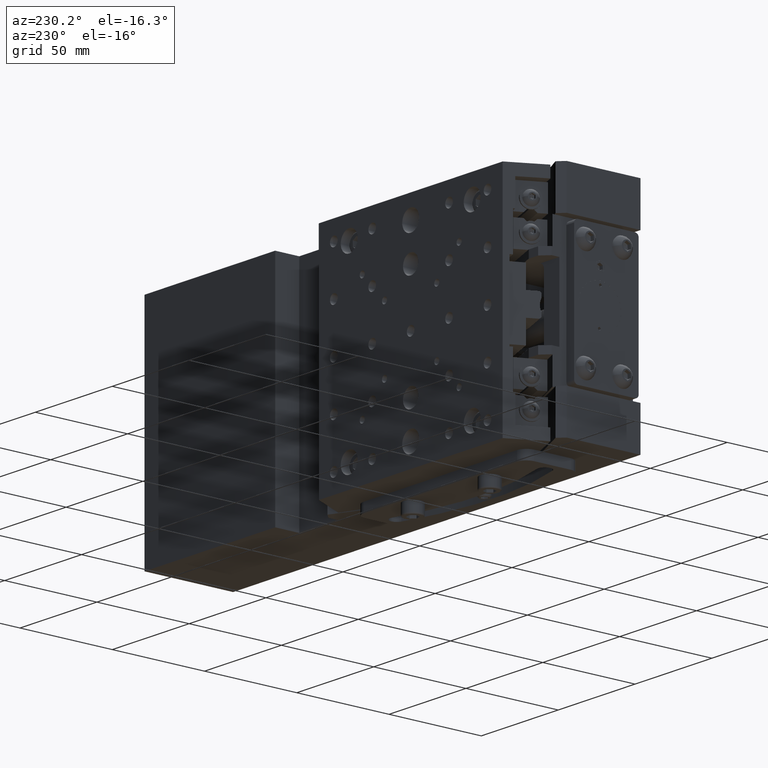
[diagram: clean part render]
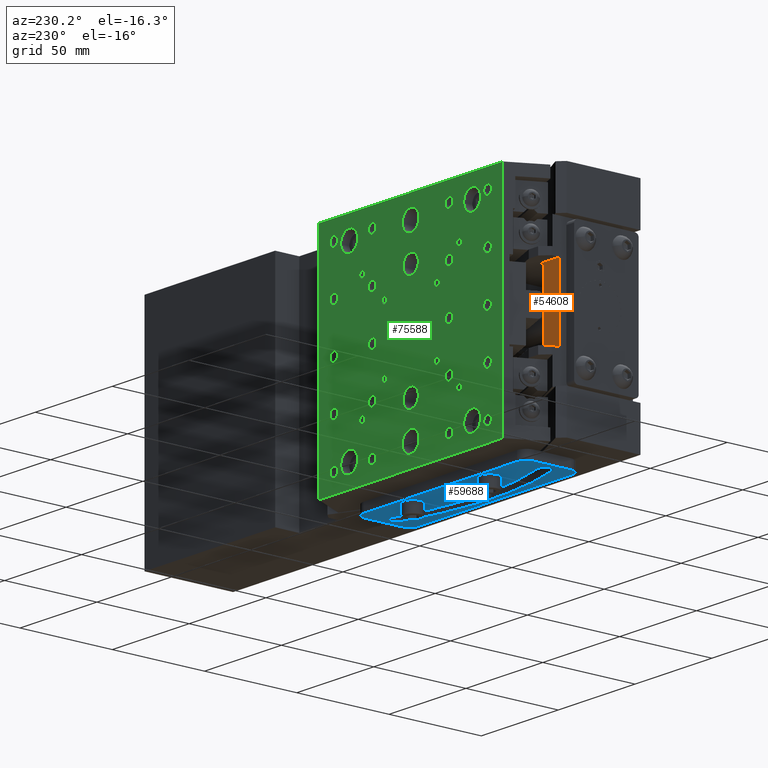
[diagram: same view with three faces highlighted in distinct colors, each labeled with its STEP entity id]
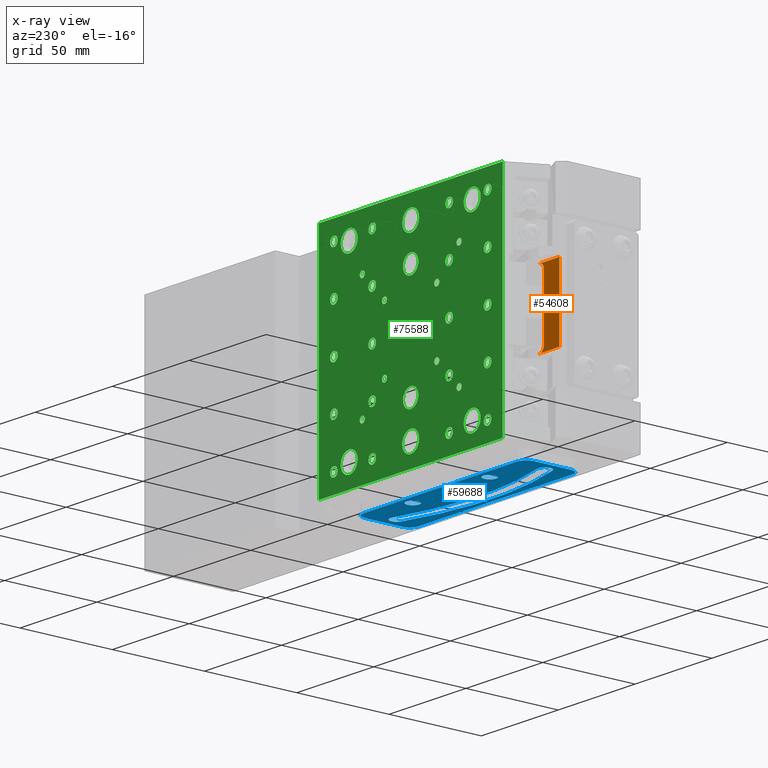
[diagram: x-ray of the same camera — body ghosted, the three highlighted faces saturated]
A machine part, auxiliary view with three faces highlighted in distinct colors.
The next image is the same camera in x-ray (body ghosted, the three faces saturated) — at least one of them is partly hidden behind the body in this view.
Their STEP definitions:

[orange] entity #54608 — the highlighted planar face has unit normal (0, -1, 0).
#464 = DIRECTION ( 'NONE',  ( 0.000000000000000000, 0.000000000000000000, -1.000000000000000000 ) ) ;
#10898 = CARTESIAN_POINT ( 'NONE',  ( -153.8542983625164879, 21.71383770330144714, 24.99875000000000114 ) ) ;
#15978 = PLANE ( 'NONE',  #56979 ) ;
#17941 = CARTESIAN_POINT ( 'NONE',  ( -166.8542983625164879, 21.71383770330144714, 24.99875000000000114 ) ) ;
#19999 = CARTESIAN_POINT ( 'NONE',  ( -153.8542983625164879, 21.71383770330144714, 21.99875000000000114 ) ) ;
#20373 = CARTESIAN_POINT ( 'NONE',  ( -166.8542983625164879, 21.71383770330144714, -32.00124999999999886 ) ) ;
#21433 = VECTOR ( 'NONE', #43801, 1000.000000000000000 ) ;
#21804 = VERTEX_POINT ( 'NONE', #82661 ) ;
#22788 = ORIENTED_EDGE ( 'NONE', *, *, #51102, .T. ) ;
#23722 = CARTESIAN_POINT ( 'NONE',  ( -221.8542983625164879, 21.71383770330144714, 24.99875000000000114 ) ) ;
#25658 = EDGE_LOOP ( 'NONE', ( #89793, #22788, #48655, #80990, #73179, #39665 ) ) ;
#29959 = CARTESIAN_POINT ( 'NONE',  ( -156.8542983625164879, 21.71383770330144714, -11.00125000000000064 ) ) ;
#30272 = VERTEX_POINT ( 'NONE', #76005 ) ;
#30865 = VERTEX_POINT ( 'NONE', #17941 ) ;
#31819 = VECTOR ( 'NONE', #52391, 1000.000000000000000 ) ;
#33049 = FACE_OUTER_BOUND ( 'NONE', #25658, .T. ) ;
#34475 = VERTEX_POINT ( 'NONE', #29959 ) ;
#34750 = EDGE_CURVE ( 'NONE', #47763, #21804, #97231, .T. ) ;
#39665 = ORIENTED_EDGE ( 'NONE', *, *, #62045, .T. ) ;
#40286 = DIRECTION ( 'NONE',  ( 1.000000000000000000, 0.000000000000000000, 0.000000000000000000 ) ) ;
#43801 = DIRECTION ( 'NONE',  ( 3.558407130208835242E-16, 0.000000000000000000, 1.000000000000000000 ) ) ;
#44309 = LINE ( 'NONE', #91806, #21433 ) ;
#47763 = VERTEX_POINT ( 'NONE', #10898 ) ;
#48655 = ORIENTED_EDGE ( 'NONE', *, *, #75184, .T. ) ;
#50121 = VECTOR ( 'NONE', #70450, 1000.000000000000000 ) ;
#51102 = EDGE_CURVE ( 'NONE', #30272, #30865, #91127, .T. ) ;
#52391 = DIRECTION ( 'NONE',  ( 0.000000000000000000, 0.000000000000000000, 1.000000000000000000 ) ) ;
#54608 = ADVANCED_FACE ( 'NONE', ( #33049 ), #15978, .F. ) ;
#55385 = DIRECTION ( 'NONE',  ( 0.000000000000000000, -1.000000000000000000, 0.000000000000000000 ) ) ;
#55420 = CARTESIAN_POINT ( 'NONE',  ( -221.8542983625164879, 21.71383770330144714, 24.99875000000000114 ) ) ;
#56979 = AXIS2_PLACEMENT_3D ( 'NONE', #23722, #79516, #464 ) ;
#57609 = AXIS2_PLACEMENT_3D ( 'NONE', #19999, #89721, #82998 ) ;
#59331 = AXIS2_PLACEMENT_3D ( 'NONE', #63164, #55385, #80164 ) ;
#62045 = EDGE_CURVE ( 'NONE', #34475, #68061, #84023, .T. ) ;
#63164 = CARTESIAN_POINT ( 'NONE',  ( -153.8542983625164879, 21.71383770330144714, -11.00125000000000064 ) ) ;
#68061 = VERTEX_POINT ( 'NONE', #86121 ) ;
#70450 = DIRECTION ( 'NONE',  ( 1.000000000000000000, 0.000000000000000000, 0.000000000000000000 ) ) ;
#70790 = LINE ( 'NONE', #102302, #89257 ) ;
#73179 = ORIENTED_EDGE ( 'NONE', *, *, #89945, .F. ) ;
#75184 = EDGE_CURVE ( 'NONE', #30865, #47763, #78195, .T. ) ;
#76005 = CARTESIAN_POINT ( 'NONE',  ( -166.8542983625164879, 21.71383770330144714, -14.00125000000000064 ) ) ;
#78195 = LINE ( 'NONE', #55420, #50121 ) ;
#79516 = DIRECTION ( 'NONE',  ( 0.000000000000000000, -1.000000000000000000, 0.000000000000000000 ) ) ;
#80164 = DIRECTION ( 'NONE',  ( 0.000000000000000000, 0.000000000000000000, -1.000000000000000000 ) ) ;
#80990 = ORIENTED_EDGE ( 'NONE', *, *, #34750, .T. ) ;
#82661 = CARTESIAN_POINT ( 'NONE',  ( -156.8542983625164879, 21.71383770330144714, 21.99875000000000114 ) ) ;
#82998 = DIRECTION ( 'NONE',  ( 0.000000000000000000, 0.000000000000000000, -1.000000000000000000 ) ) ;
#84023 = CIRCLE ( 'NONE', #59331, 2.999999999999999112 ) ;
#86121 = CARTESIAN_POINT ( 'NONE',  ( -153.8542983625164879, 21.71383770330144714, -14.00125000000000064 ) ) ;
#89257 = VECTOR ( 'NONE', #40286, 1000.000000000000000 ) ;
#89721 = DIRECTION ( 'NONE',  ( 0.000000000000000000, -1.000000000000000000, 0.000000000000000000 ) ) ;
#89793 = ORIENTED_EDGE ( 'NONE', *, *, #91678, .F. ) ;
#89945 = EDGE_CURVE ( 'NONE', #34475, #21804, #44309, .T. ) ;
#91127 = LINE ( 'NONE', #20373, #31819 ) ;
#91678 = EDGE_CURVE ( 'NONE', #30272, #68061, #70790, .T. ) ;
#91806 = CARTESIAN_POINT ( 'NONE',  ( -156.8542983625164879, 21.71383770330144714, -14.00125000000000064 ) ) ;
#97231 = CIRCLE ( 'NONE', #57609, 2.999999999999999112 ) ;
#102302 = CARTESIAN_POINT ( 'NONE',  ( -221.8542983625164879, 21.71383770330144714, -14.00125000000000064 ) ) ;

[blue] entity #59688 — the highlighted planar face has unit normal (0, -0, 1).
#437 = CARTESIAN_POINT ( 'NONE',  ( -69.35991983085450840, 19.89284812289029958, -59.50124999999999886 ) ) ;
#769 = CARTESIAN_POINT ( 'NONE',  ( -144.3606719377625893, 0.8958172128215400321, -59.50124999999999886 ) ) ;
#1508 = CARTESIAN_POINT ( 'NONE',  ( -44.35968232444079717, 25.89185842650774916, -59.50124999999999886 ) ) ;
#2630 = ORIENTED_EDGE ( 'NONE', *, *, #64202, .T. ) ;
#2883 = DIRECTION ( 'NONE',  ( -3.958766724006380466E-05, -0.9999999992164082530, -1.713813869590605198E-23 ) ) ;
#3482 = AXIS2_PLACEMENT_3D ( 'NONE', #38111, #16229, #6579 ) ;
#4367 = CIRCLE ( 'NONE', #86867, 4.999999999999985789 ) ;
#4740 = CARTESIAN_POINT ( 'NONE',  ( -119.3599197916749972, 19.89482750625230167, -59.50124999999999886 ) ) ;
#6205 = FACE_BOUND ( 'NONE', #89006, .T. ) ;
#6559 = DIRECTION ( 'NONE',  ( 0.9999999992164083640, -3.958766723998613513E-05, 0.000000000000000000 ) ) ;
#6579 = DIRECTION ( 'NONE',  ( 0.9999999992164083640, -3.958766724015960747E-05, 0.000000000000000000 ) ) ;
#6931 = VERTEX_POINT ( 'NONE', #86220 ) ;
#7048 = CARTESIAN_POINT ( 'NONE',  ( -44.36067201612179645, 0.8918584460975310657, -59.50124999999999886 ) ) ;
#8502 = ORIENTED_EDGE ( 'NONE', *, *, #17009, .T. ) ;
#8810 = DIRECTION ( 'NONE',  ( 0.9999999992164082530, -3.958766724055607310E-05, 0.000000000000000000 ) ) ;
#8930 = CARTESIAN_POINT ( 'NONE',  ( -46.24741134822019717, 9.297221024576298731, -59.50124999999999886 ) ) ;
#9332 = VERTEX_POINT ( 'NONE', #87394 ) ;
#10078 = DIRECTION ( 'NONE',  ( 1.317994238822768050E-27, 3.329305133844145323E-23, -1.000000000000000000 ) ) ;
#10507 = ORIENTED_EDGE ( 'NONE', *, *, #39753, .F. ) ;
#10878 = EDGE_CURVE ( 'NONE', #33981, #25632, #72386, .T. ) ;
#11139 = CARTESIAN_POINT ( 'NONE',  ( -149.3596822421636148, 25.89601513156794965, -59.50124999999999886 ) ) ;
#12356 = DIRECTION ( 'NONE',  ( -1.317994238828114059E-27, -3.329305133844140033E-23, 1.000000000000000000 ) ) ;
#13174 = ORIENTED_EDGE ( 'NONE', *, *, #44344, .T. ) ;
#13427 = VERTEX_POINT ( 'NONE', #83964 ) ;
#13438 = FACE_BOUND ( 'NONE', #66408, .T. ) ;
#13814 = VERTEX_POINT ( 'NONE', #42068 ) ;
#14648 = AXIS2_PLACEMENT_3D ( 'NONE', #8930, #46677, #71440 ) ;
#15178 = VERTEX_POINT ( 'NONE', #51245 ) ;
#16216 = CARTESIAN_POINT ( 'NONE',  ( -65.85991983359700441, 19.89270956605495044, -59.50124999999999886 ) ) ;
#16229 = DIRECTION ( 'NONE',  ( 1.317994238828538081E-27, 3.329305133844140033E-23, -1.000000000000000000 ) ) ;
#16636 = EDGE_CURVE ( 'NONE', #97068, #43520, #35226, .T. ) ;
#17009 = EDGE_CURVE ( 'NONE', #9332, #33981, #27017, .T. ) ;
#18238 = EDGE_CURVE ( 'NONE', #13427, #44037, #70007, .T. ) ;
#18682 = AXIS2_PLACEMENT_3D ( 'NONE', #40880, #96132, #47611 ) ;
#18854 = DIRECTION ( 'NONE',  ( 0.9999999992164083640, -3.958766723998625032E-05, 0.000000000000000000 ) ) ;
#19991 = CARTESIAN_POINT ( 'NONE',  ( -72.85991982811191292, 19.89298667972565227, -59.50124999999999886 ) ) ;
#20750 = CARTESIAN_POINT ( 'NONE',  ( -143.5258695556275939, 5.963062721578030079, -59.50124999999999886 ) ) ;
#23213 = ORIENTED_EDGE ( 'NONE', *, *, #47010, .F. ) ;
#24732 = AXIS2_PLACEMENT_3D ( 'NONE', #28896, #12356, #29931 ) ;
#25399 = DIRECTION ( 'NONE',  ( -1.317994238841739972E-27, -3.329305133844145323E-23, 1.000000000000000000 ) ) ;
#25632 = VERTEX_POINT ( 'NONE', #94788 ) ;
#25639 = EDGE_CURVE ( 'NONE', #15178, #54769, #4367, .T. ) ;
#27017 = CIRCLE ( 'NONE', #31988, 3.499999999999990230 ) ;
#27497 = CARTESIAN_POINT ( 'NONE',  ( -115.8599197944173937, 19.89468894941694899, -59.50124999999999886 ) ) ;
#28259 = LINE ( 'NONE', #35501, #74730 ) ;
#28347 = LINE ( 'NONE', #68614, #45065 ) ;
#28896 = CARTESIAN_POINT ( 'NONE',  ( -94.35429836251660163, 161.8938377033014717, -59.50124999999999886 ) ) ;
#29484 = FACE_BOUND ( 'NONE', #66491, .T. ) ;
#29551 = VERTEX_POINT ( 'NONE', #1508 ) ;
#29931 = DIRECTION ( 'NONE',  ( 0.9999999992164082530, -3.958766724014688165E-05, 0.000000000000000000 ) ) ;
#30050 = EDGE_CURVE ( 'NONE', #25632, #32350, #33098, .T. ) ;
#31589 = DIRECTION ( 'NONE',  ( 0.9999999992164082530, -3.958766724006380466E-05, -9.298126946036841525E-24 ) ) ;
#31988 = AXIS2_PLACEMENT_3D ( 'NONE', #50275, #97265, #81758 ) ;
#32350 = VERTEX_POINT ( 'NONE', #33364 ) ;
#32500 = EDGE_CURVE ( 'NONE', #6931, #41313, #77189, .T. ) ;
#33098 = CIRCLE ( 'NONE', #46278, 3.499999999999997335 ) ;
#33364 = CARTESIAN_POINT ( 'NONE',  ( -42.74741135096280686, 9.297082467740960254, -59.50124999999999886 ) ) ;
#33654 = EDGE_CURVE ( 'NONE', #32350, #98984, #62451, .T. ) ;
#33697 = CARTESIAN_POINT ( 'NONE',  ( -119.3599197916749972, 19.89482750625230167, -59.50124999999999886 ) ) ;
#33981 = VERTEX_POINT ( 'NONE', #20750 ) ;
#35226 = CIRCLE ( 'NONE', #83033, 5.000000000000000000 ) ;
#35501 = CARTESIAN_POINT ( 'NONE',  ( -39.35968232835875114, 25.89166048817154930, -59.50124999999999886 ) ) ;
#36273 = DIRECTION ( 'NONE',  ( -1.317994238841739972E-27, -3.329305133844145323E-23, 1.000000000000000000 ) ) ;
#37498 = EDGE_CURVE ( 'NONE', #29551, #13814, #51332, .T. ) ;
#37610 = VECTOR ( 'NONE', #31589, 1000.000000000000227 ) ;
#38111 = CARTESIAN_POINT ( 'NONE',  ( -44.35988026277699703, 20.89185843042569957, -59.50124999999999886 ) ) ;
#39732 = DIRECTION ( 'NONE',  ( 0.9999999992164082530, -3.958766724055607310E-05, 0.000000000000000000 ) ) ;
#39753 = EDGE_CURVE ( 'NONE', #29551, #44037, #28347, .T. ) ;
#40880 = CARTESIAN_POINT ( 'NONE',  ( -144.3598801844180173, 20.89581719714970021, -59.50124999999999886 ) ) ;
#41313 = VERTEX_POINT ( 'NONE', #27497 ) ;
#42068 = CARTESIAN_POINT ( 'NONE',  ( -39.35988026669495099, 20.89166049208949616, -59.50124999999999886 ) ) ;
#43520 = VERTEX_POINT ( 'NONE', #87982 ) ;
#44037 = VERTEX_POINT ( 'NONE', #50162 ) ;
#44344 = EDGE_CURVE ( 'NONE', #98984, #9332, #85724, .T. ) ;
#44738 = DIRECTION ( 'NONE',  ( -0.9999999992164082530, 3.958766724006051139E-05, 0.000000000000000000 ) ) ;
#44955 = PLANE ( 'NONE',  #90377 ) ;
#44960 = ORIENTED_EDGE ( 'NONE', *, *, #100392, .T. ) ;
#45065 = VECTOR ( 'NONE', #60359, 1000.000000000000227 ) ;
#46278 = AXIS2_PLACEMENT_3D ( 'NONE', #98461, #58167, #44738 ) ;
#46488 = CARTESIAN_POINT ( 'NONE',  ( -94.35429836251660163, 161.8938377033014717, -59.50124999999999886 ) ) ;
#46677 = DIRECTION ( 'NONE',  ( -1.317994238825240075E-27, -3.329305133844145323E-23, 1.000000000000000000 ) ) ;
#47010 = EDGE_CURVE ( 'NONE', #13427, #54769, #72642, .T. ) ;
#47611 = DIRECTION ( 'NONE',  ( 0.9999999992164083640, -3.958766724015972267E-05, 0.000000000000000000 ) ) ;
#48115 = ORIENTED_EDGE ( 'NONE', *, *, #37498, .T. ) ;
#48407 = ORIENTED_EDGE ( 'NONE', *, *, #33654, .T. ) ;
#48727 = AXIS2_PLACEMENT_3D ( 'NONE', #76102, #78135, #61641 ) ;
#49257 = ORIENTED_EDGE ( 'NONE', *, *, #32500, .T. ) ;
#50162 = CARTESIAN_POINT ( 'NONE',  ( -144.3596822460816043, 25.89581719323174980, -59.50124999999999886 ) ) ;
#50275 = CARTESIAN_POINT ( 'NONE',  ( -142.4732671141849778, 9.301030381737241726, -59.50124999999999886 ) ) ;
#51245 = CARTESIAN_POINT ( 'NONE',  ( -144.3608698760990023, -4.104182783260500678, -59.50124999999999886 ) ) ;
#51332 = CIRCLE ( 'NONE', #3482, 5.000000000000000000 ) ;
#52775 = CARTESIAN_POINT ( 'NONE',  ( -149.3608698721810129, -4.103984844924299935, -59.50124999999999886 ) ) ;
#52978 = VERTEX_POINT ( 'NONE', #16216 ) ;
#53674 = CARTESIAN_POINT ( 'NONE',  ( -47.29974950165799896, 12.63527201442346026, -59.50124999999999886 ) ) ;
#54466 = ORIENTED_EDGE ( 'NONE', *, *, #85911, .F. ) ;
#54769 = VERTEX_POINT ( 'NONE', #99099 ) ;
#55398 = CARTESIAN_POINT ( 'NONE',  ( -39.36067202003975041, 0.8916605077613309893, -59.50124999999999886 ) ) ;
#58167 = DIRECTION ( 'NONE',  ( -1.317994238825240075E-27, -3.329305133844145323E-23, 1.000000000000000000 ) ) ;
#59541 = VECTOR ( 'NONE', #2883, 1000.000000000000227 ) ;
#59688 = ADVANCED_FACE ( 'NONE', ( #6205, #29484, #13438, #93468 ), #44955, .F. ) ;
#60359 = DIRECTION ( 'NONE',  ( -0.9999999992164082530, 3.958766724006380466E-05, 9.298126946036841525E-24 ) ) ;
#60998 = DIRECTION ( 'NONE',  ( 0.000000000000000000, -1.000000000000000000, -3.329341942959690561E-23 ) ) ;
#61641 = DIRECTION ( 'NONE',  ( 0.9999999992164082530, -3.958766724055607310E-05, 0.000000000000000000 ) ) ;
#62451 = CIRCLE ( 'NONE', #14648, 3.499999999999997335 ) ;
#63640 = ORIENTED_EDGE ( 'NONE', *, *, #16636, .T. ) ;
#64202 = EDGE_CURVE ( 'NONE', #86764, #52978, #87684, .T. ) ;
#65583 = ORIENTED_EDGE ( 'NONE', *, *, #25639, .T. ) ;
#65946 = ORIENTED_EDGE ( 'NONE', *, *, #74652, .F. ) ;
#66408 = EDGE_LOOP ( 'NONE', ( #44960, #49257 ) ) ;
#66491 = EDGE_LOOP ( 'NONE', ( #73083, #2630 ) ) ;
#67003 = DIRECTION ( 'NONE',  ( 3.958766724006380466E-05, 0.9999999992164082530, 1.713813869590605198E-23 ) ) ;
#68614 = CARTESIAN_POINT ( 'NONE',  ( -149.3596822421636148, 25.89601513156794965, -59.50124999999999886 ) ) ;
#69740 = DIRECTION ( 'NONE',  ( 1.317994238823077994E-27, 3.329305133844145323E-23, -1.000000000000000000 ) ) ;
#70007 = CIRCLE ( 'NONE', #18682, 4.999999999999985789 ) ;
#70238 = DIRECTION ( 'NONE',  ( 0.9999999992164082530, -3.958766723999556091E-05, 0.000000000000000000 ) ) ;
#71440 = DIRECTION ( 'NONE',  ( -0.9999999992164082530, 3.958766724006051139E-05, 0.000000000000000000 ) ) ;
#71816 = CIRCLE ( 'NONE', #48727, 3.500000000000003997 ) ;
#72386 = CIRCLE ( 'NONE', #24732, 163.4999999999999716 ) ;
#72642 = LINE ( 'NONE', #11139, #59541 ) ;
#72896 = AXIS2_PLACEMENT_3D ( 'NONE', #437, #99832, #39732 ) ;
#72933 = ORIENTED_EDGE ( 'NONE', *, *, #10878, .T. ) ;
#73083 = ORIENTED_EDGE ( 'NONE', *, *, #83497, .T. ) ;
#74652 = EDGE_CURVE ( 'NONE', #97068, #13814, #28259, .T. ) ;
#74730 = VECTOR ( 'NONE', #67003, 1000.000000000000227 ) ;
#76102 = CARTESIAN_POINT ( 'NONE',  ( -69.35991983085450840, 19.89284812289029958, -59.50124999999999886 ) ) ;
#77189 = CIRCLE ( 'NONE', #91978, 3.500000000000003997 ) ;
#78094 = EDGE_LOOP ( 'NONE', ( #10507, #48115, #65946, #63640, #54466, #65583, #23213, #87510 ) ) ;
#78135 = DIRECTION ( 'NONE',  ( -1.317994238841736026E-27, -3.329305133844140033E-23, 1.000000000000000000 ) ) ;
#81758 = DIRECTION ( 'NONE',  ( 0.9999999992164082530, -3.958766724006059271E-05, 0.000000000000000000 ) ) ;
#82072 = CIRCLE ( 'NONE', #95243, 3.500000000000003997 ) ;
#83033 = AXIS2_PLACEMENT_3D ( 'NONE', #7048, #102109, #6559 ) ;
#83497 = EDGE_CURVE ( 'NONE', #52978, #86764, #71816, .T. ) ;
#83964 = CARTESIAN_POINT ( 'NONE',  ( -149.3598801804999994, 20.89601513548590006, -59.50124999999999886 ) ) ;
#84416 = ORIENTED_EDGE ( 'NONE', *, *, #30050, .T. ) ;
#84706 = DIRECTION ( 'NONE',  ( 9.296808944512080757E-24, -3.329341942959690561E-23, 1.000000000000000000 ) ) ;
#85724 = CIRCLE ( 'NONE', #102257, 156.4999999999999716 ) ;
#85911 = EDGE_CURVE ( 'NONE', #15178, #43520, #92015, .T. ) ;
#86220 = CARTESIAN_POINT ( 'NONE',  ( -122.8599197889321886, 19.89496606308765436, -59.50124999999999886 ) ) ;
#86764 = VERTEX_POINT ( 'NONE', #19991 ) ;
#86867 = AXIS2_PLACEMENT_3D ( 'NONE', #769, #10078, #18854 ) ;
#87394 = CARTESIAN_POINT ( 'NONE',  ( -141.4206646727421912, 12.63899804189649956, -59.50124999999999886 ) ) ;
#87510 = ORIENTED_EDGE ( 'NONE', *, *, #18238, .T. ) ;
#87684 = CIRCLE ( 'NONE', #72896, 3.500000000000003997 ) ;
#87982 = CARTESIAN_POINT ( 'NONE',  ( -44.36086995445795367, -4.108141549984509311, -59.50124999999999886 ) ) ;
#89006 = EDGE_LOOP ( 'NONE', ( #72933, #84416, #48407, #13174, #8502 ) ) ;
#90377 = AXIS2_PLACEMENT_3D ( 'NONE', #92962, #84706, #60998 ) ;
#91978 = AXIS2_PLACEMENT_3D ( 'NONE', #33697, #25399, #97196 ) ;
#92015 = LINE ( 'NONE', #52775, #37610 ) ;
#92962 = CARTESIAN_POINT ( 'NONE',  ( -39.36086995837599289, -4.108339488320709165, -59.50124999999999886 ) ) ;
#93468 = FACE_OUTER_BOUND ( 'NONE', #78094, .T. ) ;
#94788 = CARTESIAN_POINT ( 'NONE',  ( -45.19507319478249485, 5.959170034729189602, -59.50124999999999886 ) ) ;
#95243 = AXIS2_PLACEMENT_3D ( 'NONE', #4740, #36273, #8810 ) ;
#96132 = DIRECTION ( 'NONE',  ( 1.317994238828540054E-27, 3.329305133844140033E-23, -1.000000000000000000 ) ) ;
#97068 = VERTEX_POINT ( 'NONE', #55398 ) ;
#97196 = DIRECTION ( 'NONE',  ( 0.9999999992164082530, -3.958766724055607310E-05, 0.000000000000000000 ) ) ;
#97265 = DIRECTION ( 'NONE',  ( -1.317994238825242048E-27, -3.329305133844145323E-23, 1.000000000000000000 ) ) ;
#98461 = CARTESIAN_POINT ( 'NONE',  ( -46.24741134822019717, 9.297221024576298731, -59.50124999999999886 ) ) ;
#98984 = VERTEX_POINT ( 'NONE', #53674 ) ;
#99099 = CARTESIAN_POINT ( 'NONE',  ( -149.3606719338445714, 0.8960151511577411076, -59.50124999999999886 ) ) ;
#99832 = DIRECTION ( 'NONE',  ( -1.317994238841736026E-27, -3.329305133844140033E-23, 1.000000000000000000 ) ) ;
#100392 = EDGE_CURVE ( 'NONE', #41313, #6931, #82072, .T. ) ;
#102109 = DIRECTION ( 'NONE',  ( 1.317994238822764104E-27, 3.329305133844145323E-23, -1.000000000000000000 ) ) ;
#102257 = AXIS2_PLACEMENT_3D ( 'NONE', #46488, #69740, #70238 ) ;

[green] entity #75588 — the highlighted planar face has unit normal (-0, -1, -0).
#274 = CARTESIAN_POINT ( 'NONE',  ( -94.35904888258539813, 41.89383779733230284, 5.498749999999909654 ) ) ;
#284 = FACE_BOUND ( 'NONE', #52695, .T. ) ;
#313 = DIRECTION ( 'NONE',  ( 3.958766724006381821E-05, 0.9999999992164084750, 0.000000000000000000 ) ) ;
#356 = ORIENTED_EDGE ( 'NONE', *, *, #45215, .F. ) ;
#471 = VERTEX_POINT ( 'NONE', #65598 ) ;
#473 = DIRECTION ( 'NONE',  ( 3.958766724006381821E-05, 0.9999999992164084750, 0.000000000000000000 ) ) ;
#620 = EDGE_CURVE ( 'NONE', #75540, #94444, #100341, .T. ) ;
#806 = DIRECTION ( 'NONE',  ( 3.958766724006381821E-05, 0.9999999992164084750, 0.000000000000000000 ) ) ;
#997 = VERTEX_POINT ( 'NONE', #39025 ) ;
#1026 = DIRECTION ( 'NONE',  ( 3.958766724006381821E-05, 0.9999999992164084750, 0.000000000000000000 ) ) ;
#1167 = VERTEX_POINT ( 'NONE', #57562 ) ;
#1243 = CARTESIAN_POINT ( 'NONE',  ( -77.35904889590639755, 41.89316480698919776, 20.84874999999999901 ) ) ;
#1295 = FACE_BOUND ( 'NONE', #43482, .T. ) ;
#1820 = FACE_BOUND ( 'NONE', #98768, .T. ) ;
#1854 = ORIENTED_EDGE ( 'NONE', *, *, #43562, .F. ) ;
#2023 = DIRECTION ( 'NONE',  ( 3.958766724006381821E-05, 0.9999999992164084750, 0.000000000000000000 ) ) ;
#2086 = CIRCLE ( 'NONE', #38399, 1.650000000000000355 ) ;
#2133 = VERTEX_POINT ( 'NONE', #48316 ) ;
#2234 = DIRECTION ( 'NONE',  ( 0.000000000000000000, 0.000000000000000000, 1.000000000000000000 ) ) ;
#2298 = CIRCLE ( 'NONE', #25465, 2.499999999999998668 ) ;
#2308 = EDGE_CURVE ( 'NONE', #22985, #95745, #99746, .T. ) ;
#2311 = EDGE_CURVE ( 'NONE', #81725, #87081, #94754, .T. ) ;
#2398 = CARTESIAN_POINT ( 'NONE',  ( -119.3590488629956070, 41.89482748901329501, 27.99874999999999758 ) ) ;
#2494 = LINE ( 'NONE', #89273, #39717 ) ;
#2691 = ORIENTED_EDGE ( 'NONE', *, *, #53808, .F. ) ;
#2778 = VERTEX_POINT ( 'NONE', #30373 ) ;
#3006 = ORIENTED_EDGE ( 'NONE', *, *, #59196, .F. ) ;
#3533 = EDGE_CURVE ( 'NONE', #8201, #46690, #14559, .T. ) ;
#3766 = DIRECTION ( 'NONE',  ( 3.958766724006381821E-05, 0.9999999992164084750, 0.000000000000000000 ) ) ;
#3811 = LINE ( 'NONE', #35854, #94184 ) ;
#3931 = DIRECTION ( 'NONE',  ( 3.958766724006381821E-05, 0.9999999992164084750, 0.000000000000000000 ) ) ;
#4061 = CIRCLE ( 'NONE', #84888, 1.649999999999998579 ) ;
#4085 = AXIS2_PLACEMENT_3D ( 'NONE', #87877, #56884, #24365 ) ;
#4248 = ORIENTED_EDGE ( 'NONE', *, *, #4899, .F. ) ;
#4297 = EDGE_CURVE ( 'NONE', #26292, #78950, #5184, .T. ) ;
#4316 = DIRECTION ( 'NONE',  ( 0.000000000000000000, 0.000000000000000000, 1.000000000000000000 ) ) ;
#4374 = CIRCLE ( 'NONE', #50629, 1.649999999999998579 ) ;
#4514 = EDGE_CURVE ( 'NONE', #68885, #94152, #13449, .T. ) ;
#4638 = ORIENTED_EDGE ( 'NONE', *, *, #84404, .F. ) ;
#4695 = AXIS2_PLACEMENT_3D ( 'NONE', #23556, #313, #55076 ) ;
#4899 = EDGE_CURVE ( 'NONE', #18135, #26320, #49669, .T. ) ;
#4999 = DIRECTION ( 'NONE',  ( 0.000000000000000000, 0.000000000000000000, 1.000000000000000000 ) ) ;
#5121 = DIRECTION ( 'NONE',  ( 0.000000000000000000, 0.000000000000000000, 1.000000000000000000 ) ) ;
#5156 = CARTESIAN_POINT ( 'NONE',  ( -44.35904892176500169, 41.89185841397029719, -44.50124999999999886 ) ) ;
#5184 = CIRCLE ( 'NONE', #23309, 1.649999999999998579 ) ;
#5537 = CIRCLE ( 'NONE', #40214, 2.500000000000002220 ) ;
#5581 = CARTESIAN_POINT ( 'NONE',  ( -111.3590488692641998, 41.89451078767540082, -9.851250000000000284 ) ) ;
#5590 = ORIENTED_EDGE ( 'NONE', *, *, #80371, .F. ) ;
#5633 = AXIS2_PLACEMENT_3D ( 'NONE', #89224, #18981, #18473 ) ;
#5672 = CARTESIAN_POINT ( 'NONE',  ( -62.85904890726850880, 41.89259078581425655, 38.64874999999999972 ) ) ;
#5950 = AXIS2_PLACEMENT_3D ( 'NONE', #82462, #57143, #88670 ) ;
#6341 = DIRECTION ( 'NONE',  ( 0.000000000000000000, 0.000000000000000000, 1.000000000000000000 ) ) ;
#6393 = DIRECTION ( 'NONE',  ( 0.000000000000000000, 0.000000000000000000, 1.000000000000000000 ) ) ;
#6763 = DIRECTION ( 'NONE',  ( 0.000000000000000000, 0.000000000000000000, 1.000000000000000000 ) ) ;
#6810 = AXIS2_PLACEMENT_3D ( 'NONE', #92597, #53349, #84849 ) ;
#6817 = AXIS2_PLACEMENT_3D ( 'NONE', #74862, #20099, #51603 ) ;
#6877 = DIRECTION ( 'NONE',  ( 3.958766724006381821E-05, 0.9999999992164084750, 0.000000000000000000 ) ) ;
#6883 = CIRCLE ( 'NONE', #38252, 5.499999999999998224 ) ;
#6949 = CARTESIAN_POINT ( 'NONE',  ( -134.3590488512415959, 41.89542130402190168, 58.99875000000000114 ) ) ;
#7039 = CARTESIAN_POINT ( 'NONE',  ( -54.35904891392899430, 41.89225429064270401, -37.00124999999999886 ) ) ;
#7399 = DIRECTION ( 'NONE',  ( 0.000000000000000000, 0.000000000000000000, 1.000000000000000000 ) ) ;
#7420 = EDGE_LOOP ( 'NONE', ( #36573, #98471 ) ) ;
#7948 = EDGE_LOOP ( 'NONE', ( #65513, #36883 ) ) ;
#8201 = VERTEX_POINT ( 'NONE', #84598 ) ;
#8320 = CARTESIAN_POINT ( 'NONE',  ( -69.35904890217520347, 41.89284810565129646, -42.00124999999999886 ) ) ;
#8408 = CARTESIAN_POINT ( 'NONE',  ( -69.35904890217520347, 41.89284810565129646, -19.50125000000000242 ) ) ;
#8417 = EDGE_LOOP ( 'NONE', ( #40179, #2691 ) ) ;
#8566 = DIRECTION ( 'NONE',  ( -0.9999999992164083640, 3.958766723994136435E-05, 0.000000000000000000 ) ) ;
#8629 = ORIENTED_EDGE ( 'NONE', *, *, #66663, .F. ) ;
#8852 = CIRCLE ( 'NONE', #88025, 2.500000000000000444 ) ;
#8952 = CARTESIAN_POINT ( 'NONE',  ( -94.35904888258539813, 41.89383779733230284, 7.998749999999910543 ) ) ;
#9221 = CIRCLE ( 'NONE', #56980, 1.649999999999998579 ) ;
#9445 = AXIS2_PLACEMENT_3D ( 'NONE', #65059, #473, #15989 ) ;
#9772 = CIRCLE ( 'NONE', #13093, 2.500000000000002220 ) ;
#9974 = CARTESIAN_POINT ( 'NONE',  ( -69.35904890217520347, 41.89284810565129646, 27.99874999999999758 ) ) ;
#9994 = CIRCLE ( 'NONE', #16621, 2.500000000000002220 ) ;
#10069 = CIRCLE ( 'NONE', #24881, 1.649999999999998579 ) ;
#10385 = AXIS2_PLACEMENT_3D ( 'NONE', #101328, #61075, #92537 ) ;
#10504 = DIRECTION ( 'NONE',  ( 3.958766724006381821E-05, 0.9999999992164084750, 0.000000000000000000 ) ) ;
#10723 = EDGE_LOOP ( 'NONE', ( #21541, #90774 ) ) ;
#10737 = EDGE_LOOP ( 'NONE', ( #50000, #76839 ) ) ;
#10754 = DIRECTION ( 'NONE',  ( 3.958766724006381821E-05, 0.9999999992164084750, 0.000000000000000000 ) ) ;
#11094 = AXIS2_PLACEMENT_3D ( 'NONE', #17142, #97701, #58427 ) ;
#11101 = ORIENTED_EDGE ( 'NONE', *, *, #16076, .F. ) ;
#11102 = DIRECTION ( 'NONE',  ( 3.958766724006381821E-05, 0.9999999992164084750, 0.000000000000000000 ) ) ;
#11179 = DIRECTION ( 'NONE',  ( 3.958766724006381821E-05, 0.9999999992164084750, 0.000000000000000000 ) ) ;
#11310 = CARTESIAN_POINT ( 'NONE',  ( -144.3590488434060148, 41.89581718069430138, 55.49875000000000114 ) ) ;
#11312 = VECTOR ( 'NONE', #65137, 1000.000000000000227 ) ;
#11333 = VERTEX_POINT ( 'NONE', #70053 ) ;
#11703 = DIRECTION ( 'NONE',  ( 3.958766724006381821E-05, 0.9999999992164084750, 0.000000000000000000 ) ) ;
#11973 = CARTESIAN_POINT ( 'NONE',  ( -62.85904890726850880, 41.89259078581425655, -26.00124999999999886 ) ) ;
#12241 = CIRCLE ( 'NONE', #55145, 2.500000000000000444 ) ;
#12302 = DIRECTION ( 'NONE',  ( 0.000000000000000000, 0.000000000000000000, 1.000000000000000000 ) ) ;
#12362 = CARTESIAN_POINT ( 'NONE',  ( -119.3590488629956070, 41.89482748901329501, 57.99875000000000114 ) ) ;
#12456 = VERTEX_POINT ( 'NONE', #44970 ) ;
#12538 = AXIS2_PLACEMENT_3D ( 'NONE', #89264, #57752, #73780 ) ;
#12875 = CARTESIAN_POINT ( 'NONE',  ( -69.35904890217520347, 41.89284810565129646, 5.498749999999909654 ) ) ;
#13040 = CIRCLE ( 'NONE', #100502, 2.499999999999998668 ) ;
#13093 = AXIS2_PLACEMENT_3D ( 'NONE', #19686, #51195, #37234 ) ;
#13098 = EDGE_LOOP ( 'NONE', ( #67298, #58815 ) ) ;
#13168 = EDGE_CURVE ( 'NONE', #63009, #11333, #82303, .T. ) ;
#13311 = CIRCLE ( 'NONE', #92515, 2.499999999999998668 ) ;
#13417 = EDGE_LOOP ( 'NONE', ( #84440, #42651 ) ) ;
#13433 = CARTESIAN_POINT ( 'NONE',  ( -144.3590488434060148, 41.89581718069430138, 5.498749999999909654 ) ) ;
#13449 = CIRCLE ( 'NONE', #71191, 2.499999999999998668 ) ;
#13558 = CARTESIAN_POINT ( 'NONE',  ( -144.3590488434060148, 41.89581718069430138, 5.498749999999909654 ) ) ;
#13634 = DIRECTION ( 'NONE',  ( 0.000000000000000000, 0.000000000000000000, 1.000000000000000000 ) ) ;
#13807 = DIRECTION ( 'NONE',  ( 0.000000000000000000, 0.000000000000000000, 1.000000000000000000 ) ) ;
#13900 = AXIS2_PLACEMENT_3D ( 'NONE', #26893, #58379, #20146 ) ;
#14142 = DIRECTION ( 'NONE',  ( 0.000000000000000000, 0.000000000000000000, 1.000000000000000000 ) ) ;
#14294 = FACE_BOUND ( 'NONE', #65399, .T. ) ;
#14559 = CIRCLE ( 'NONE', #90413, 5.499999999999998224 ) ;
#14560 = VERTEX_POINT ( 'NONE', #72046 ) ;
#14614 = DIRECTION ( 'NONE',  ( 0.000000000000000000, 0.000000000000000000, 1.000000000000000000 ) ) ;
#14908 = VERTEX_POINT ( 'NONE', #62693 ) ;
#14921 = ORIENTED_EDGE ( 'NONE', *, *, #52417, .F. ) ;
#15088 = AXIS2_PLACEMENT_3D ( 'NONE', #75341, #67617, #21613 ) ;
#15301 = ORIENTED_EDGE ( 'NONE', *, *, #77363, .F. ) ;
#15302 = FACE_BOUND ( 'NONE', #69718, .T. ) ;
#15321 = EDGE_LOOP ( 'NONE', ( #74754, #33096 ) ) ;
#15540 = VERTEX_POINT ( 'NONE', #30313 ) ;
#15989 = DIRECTION ( 'NONE',  ( 0.000000000000000000, 0.000000000000000000, 1.000000000000000000 ) ) ;
#16025 = CARTESIAN_POINT ( 'NONE',  ( -144.3590488434060148, 41.89581718069430138, 7.998749999999899885 ) ) ;
#16056 = DIRECTION ( 'NONE',  ( 3.958766724006381821E-05, 0.9999999992164084750, 0.000000000000000000 ) ) ;
#16076 = EDGE_CURVE ( 'NONE', #30908, #55996, #35158, .T. ) ;
#16101 = AXIS2_PLACEMENT_3D ( 'NONE', #61819, #60790, #30316 ) ;
#16302 = DIRECTION ( 'NONE',  ( 0.000000000000000000, 0.000000000000000000, 1.000000000000000000 ) ) ;
#16312 = FACE_BOUND ( 'NONE', #52894, .T. ) ;
#16621 = AXIS2_PLACEMENT_3D ( 'NONE', #81319, #32821, #34852 ) ;
#16631 = DIRECTION ( 'NONE',  ( 0.000000000000000000, 0.000000000000000000, 1.000000000000000000 ) ) ;
#16694 = CARTESIAN_POINT ( 'NONE',  ( -94.35904888258539813, 41.89383779733230284, -42.50124999999999886 ) ) ;
#16820 = FACE_BOUND ( 'NONE', #13098, .T. ) ;
#16858 = DIRECTION ( 'NONE',  ( 3.958766724006381821E-05, 0.9999999992164084750, 0.000000000000000000 ) ) ;
#16933 = EDGE_LOOP ( 'NONE', ( #81761, #35021 ) ) ;
#16996 = DIRECTION ( 'NONE',  ( 0.000000000000000000, 0.000000000000000000, 1.000000000000000000 ) ) ;
#17036 = AXIS2_PLACEMENT_3D ( 'NONE', #94260, #55495, #23484 ) ;
#17142 = CARTESIAN_POINT ( 'NONE',  ( -111.3590488692641998, 41.89451078767540082, -11.50124999999999886 ) ) ;
#17296 = EDGE_CURVE ( 'NONE', #42256, #60508, #32061, .T. ) ;
#17458 = EDGE_CURVE ( 'NONE', #97382, #25694, #53482, .T. ) ;
#17525 = DIRECTION ( 'NONE',  ( 3.958766724006381821E-05, 0.9999999992164084750, 0.000000000000000000 ) ) ;
#17642 = DIRECTION ( 'NONE',  ( 3.958766724006381821E-05, 0.9999999992164084750, 0.000000000000000000 ) ) ;
#17653 = AXIS2_PLACEMENT_3D ( 'NONE', #24981, #87981, #2234 ) ;
#17874 = EDGE_CURVE ( 'NONE', #67555, #74528, #30515, .T. ) ;
#18135 = VERTEX_POINT ( 'NONE', #69851 ) ;
#18468 = VERTEX_POINT ( 'NONE', #84196 ) ;
#18473 = DIRECTION ( 'NONE',  ( 0.000000000000000000, 0.000000000000000000, 1.000000000000000000 ) ) ;
#18486 = EDGE_CURVE ( 'NONE', #86457, #56153, #66547, .T. ) ;
#18762 = AXIS2_PLACEMENT_3D ( 'NONE', #48845, #47312, #8566 ) ;
#18779 = CARTESIAN_POINT ( 'NONE',  ( -94.35904888258539813, 41.89383779733230284, 53.49875000000000114 ) ) ;
#18782 = CARTESIAN_POINT ( 'NONE',  ( -94.35904888258539813, 41.89383779733230284, 47.99875000000000114 ) ) ;
#18981 = DIRECTION ( 'NONE',  ( 3.958766724006381821E-05, 0.9999999992164084750, 0.000000000000000000 ) ) ;
#19065 = DIRECTION ( 'NONE',  ( 0.000000000000000000, 0.000000000000000000, 1.000000000000000000 ) ) ;
#19093 = ORIENTED_EDGE ( 'NONE', *, *, #35218, .F. ) ;
#19272 = ORIENTED_EDGE ( 'NONE', *, *, #21181, .F. ) ;
#19535 = DIRECTION ( 'NONE',  ( -0.9999999992164082530, 3.958766723994136435E-05, 9.298126946036841525E-24 ) ) ;
#19575 = DIRECTION ( 'NONE',  ( 0.000000000000000000, 0.000000000000000000, 1.000000000000000000 ) ) ;
#19686 = CARTESIAN_POINT ( 'NONE',  ( -144.3590488434060148, 41.89581718069430138, -44.50124999999999886 ) ) ;
#19989 = DIRECTION ( 'NONE',  ( 3.958766724006381821E-05, 0.9999999992164084750, 0.000000000000000000 ) ) ;
#20068 = EDGE_LOOP ( 'NONE', ( #20822, #19272 ) ) ;
#20098 = CIRCLE ( 'NONE', #76212, 2.500000000000002220 ) ;
#20099 = DIRECTION ( 'NONE',  ( 3.958766724006381821E-05, 0.9999999992164084750, 0.000000000000000000 ) ) ;
#20146 = DIRECTION ( 'NONE',  ( 0.000000000000000000, 0.000000000000000000, 1.000000000000000000 ) ) ;
#20201 = ORIENTED_EDGE ( 'NONE', *, *, #64490, .F. ) ;
#20312 = EDGE_LOOP ( 'NONE', ( #1854, #8629 ) ) ;
#20322 = DIRECTION ( 'NONE',  ( 0.000000000000000000, 0.000000000000000000, 1.000000000000000000 ) ) ;
#20429 = CIRCLE ( 'NONE', #5633, 2.500000000000002220 ) ;
#20735 = CARTESIAN_POINT ( 'NONE',  ( -144.3590488434060148, 41.89581718069430138, 32.99875000000000114 ) ) ;
#20769 = VERTEX_POINT ( 'NONE', #52541 ) ;
#20822 = ORIENTED_EDGE ( 'NONE', *, *, #17458, .F. ) ;
#20840 = DIRECTION ( 'NONE',  ( -3.075322940349819998E-23, 3.329426883923090276E-23, -1.000000000000000000 ) ) ;
#20873 = AXIS2_PLACEMENT_3D ( 'NONE', #21693, #46483, #53201 ) ;
#20901 = AXIS2_PLACEMENT_3D ( 'NONE', #274, #95309, #16302 ) ;
#21009 = EDGE_CURVE ( 'NONE', #36847, #22437, #9221, .T. ) ;
#21039 = DIRECTION ( 'NONE',  ( 3.958766724006381821E-05, 0.9999999992164084750, 0.000000000000000000 ) ) ;
#21126 = DIRECTION ( 'NONE',  ( 3.958766724006381821E-05, 0.9999999992164084750, 0.000000000000000000 ) ) ;
#21138 = VERTEX_POINT ( 'NONE', #74160 ) ;
#21181 = EDGE_CURVE ( 'NONE', #25694, #97382, #70220, .T. ) ;
#21541 = ORIENTED_EDGE ( 'NONE', *, *, #68288, .F. ) ;
#21613 = DIRECTION ( 'NONE',  ( 0.000000000000000000, 0.000000000000000000, 1.000000000000000000 ) ) ;
#21693 = CARTESIAN_POINT ( 'NONE',  ( -119.3590488629956070, 41.89482748901329501, -19.50125000000000242 ) ) ;
#21766 = CARTESIAN_POINT ( 'NONE',  ( -44.35904892176500169, 41.89185841397029719, -42.00124999999999886 ) ) ;
#21892 = CARTESIAN_POINT ( 'NONE',  ( -125.8590488579022235, 41.89508480885035624, -26.00124999999999886 ) ) ;
#21982 = DIRECTION ( 'NONE',  ( 0.000000000000000000, 0.000000000000000000, 1.000000000000000000 ) ) ;
#22195 = CARTESIAN_POINT ( 'NONE',  ( -44.35904892176500169, 41.89185841397029719, 30.49875000000000114 ) ) ;
#22365 = CARTESIAN_POINT ( 'NONE',  ( -134.3590488512415959, 41.89542130402190168, -42.50124999999999886 ) ) ;
#22395 = EDGE_CURVE ( 'NONE', #1167, #59749, #58901, .T. ) ;
#22437 = VERTEX_POINT ( 'NONE', #22442 ) ;
#22442 = CARTESIAN_POINT ( 'NONE',  ( -62.85904890726850880, 41.89259078581425655, 35.34874999999999545 ) ) ;
#22817 = EDGE_CURVE ( 'NONE', #59476, #45469, #85315, .T. ) ;
#22985 = VERTEX_POINT ( 'NONE', #5581 ) ;
#23201 = VERTEX_POINT ( 'NONE', #2398 ) ;
#23309 = AXIS2_PLACEMENT_3D ( 'NONE', #48282, #93752, #85499 ) ;
#23484 = DIRECTION ( 'NONE',  ( 0.000000000000000000, 0.000000000000000000, 1.000000000000000000 ) ) ;
#23556 = CARTESIAN_POINT ( 'NONE',  ( -119.3590488629956070, 41.89482748901329501, -44.50124999999999886 ) ) ;
#23703 = DIRECTION ( 'NONE',  ( 0.000000000000000000, 0.000000000000000000, 1.000000000000000000 ) ) ;
#23766 = DIRECTION ( 'NONE',  ( 3.958766724006381821E-05, 0.9999999992164084750, 0.000000000000000000 ) ) ;
#23907 = DIRECTION ( 'NONE',  ( 0.000000000000000000, 0.000000000000000000, 1.000000000000000000 ) ) ;
#24041 = FACE_BOUND ( 'NONE', #51520, .T. ) ;
#24365 = DIRECTION ( 'NONE',  ( 0.000000000000000000, 0.000000000000000000, 1.000000000000000000 ) ) ;
#24562 = FACE_BOUND ( 'NONE', #10737, .T. ) ;
#24586 = ORIENTED_EDGE ( 'NONE', *, *, #61941, .F. ) ;
#24881 = AXIS2_PLACEMENT_3D ( 'NONE', #50516, #21039, #51036 ) ;
#24981 = CARTESIAN_POINT ( 'NONE',  ( -77.35904889590639755, 41.89316480698919776, -11.50124999999999886 ) ) ;
#24982 = DIRECTION ( 'NONE',  ( 3.958766724006381821E-05, 0.9999999992164084750, 0.000000000000000000 ) ) ;
#25077 = FACE_BOUND ( 'NONE', #10723, .T. ) ;
#25089 = DIRECTION ( 'NONE',  ( 0.000000000000000000, 0.000000000000000000, 1.000000000000000000 ) ) ;
#25377 = CIRCLE ( 'NONE', #36976, 2.499999999999998668 ) ;
#25396 = CARTESIAN_POINT ( 'NONE',  ( -44.35904892176500169, 41.89185841397029719, -47.00124999999999886 ) ) ;
#25465 = AXIS2_PLACEMENT_3D ( 'NONE', #27990, #59479, #75613 ) ;
#25468 = EDGE_CURVE ( 'NONE', #96202, #14908, #57385, .T. ) ;
#25575 = ORIENTED_EDGE ( 'NONE', *, *, #620, .F. ) ;
#25593 = FACE_BOUND ( 'NONE', #15321, .T. ) ;
#25667 = AXIS2_PLACEMENT_3D ( 'NONE', #100464, #68945, #37970 ) ;
#25694 = VERTEX_POINT ( 'NONE', #25396 ) ;
#26166 = EDGE_CURVE ( 'NONE', #51999, #46523, #80310, .T. ) ;
#26292 = VERTEX_POINT ( 'NONE', #52297 ) ;
#26320 = VERTEX_POINT ( 'NONE', #82791 ) ;
#26591 = CARTESIAN_POINT ( 'NONE',  ( -111.3590488692641998, 41.89451078767540082, 20.84874999999999901 ) ) ;
#26893 = CARTESIAN_POINT ( 'NONE',  ( -69.35904890217520347, 41.89284810565129646, 30.49875000000000114 ) ) ;
#27208 = CARTESIAN_POINT ( 'NONE',  ( -69.35904890217520347, 41.89284810565129646, 55.49875000000000114 ) ) ;
#27291 = AXIS2_PLACEMENT_3D ( 'NONE', #31390, #16858, #31874 ) ;
#27319 = VERTEX_POINT ( 'NONE', #38120 ) ;
#27533 = VERTEX_POINT ( 'NONE', #90160 ) ;
#27750 = VERTEX_POINT ( 'NONE', #96787 ) ;
#27990 = CARTESIAN_POINT ( 'NONE',  ( -144.3590488434060148, 41.89581718069430138, -19.50125000000000242 ) ) ;
#28010 = DIRECTION ( 'NONE',  ( 0.000000000000000000, 0.000000000000000000, 1.000000000000000000 ) ) ;
#28272 = EDGE_LOOP ( 'NONE', ( #24586, #90314 ) ) ;
#28310 = CARTESIAN_POINT ( 'NONE',  ( -134.3590488512415959, 41.89542130402190168, -37.00124999999999886 ) ) ;
#28328 = CARTESIAN_POINT ( 'NONE',  ( -144.3590488434060148, 41.89581718069430138, 30.49875000000000114 ) ) ;
#28603 = VERTEX_POINT ( 'NONE', #42699 ) ;
#28787 = FACE_BOUND ( 'NONE', #63779, .T. ) ;
#28891 = ORIENTED_EDGE ( 'NONE', *, *, #97218, .F. ) ;
#28895 = CARTESIAN_POINT ( 'NONE',  ( -125.8590488579022235, 41.89508480885035624, 36.99874999999999403 ) ) ;
#29056 = CARTESIAN_POINT ( 'NONE',  ( -119.3590488629956070, 41.89482748901329501, 5.498749999999909654 ) ) ;
#29251 = CARTESIAN_POINT ( 'NONE',  ( -144.3590488434060148, 41.89581718069430138, 52.99874999999999403 ) ) ;
#29398 = ORIENTED_EDGE ( 'NONE', *, *, #98615, .F. ) ;
#29632 = EDGE_CURVE ( 'NONE', #45469, #59476, #74297, .T. ) ;
#29735 = DIRECTION ( 'NONE',  ( 3.958766724006381821E-05, 0.9999999992164084750, 0.000000000000000000 ) ) ;
#29737 = DIRECTION ( 'NONE',  ( 3.958766724006381821E-05, 0.9999999992164084750, 0.000000000000000000 ) ) ;
#29915 = DIRECTION ( 'NONE',  ( 0.000000000000000000, 0.000000000000000000, 1.000000000000000000 ) ) ;
#29965 = ORIENTED_EDGE ( 'NONE', *, *, #39567, .F. ) ;
#29992 = DIRECTION ( 'NONE',  ( 3.958766724006381821E-05, 0.9999999992164084750, 0.000000000000000000 ) ) ;
#30079 = VERTEX_POINT ( 'NONE', #29251 ) ;
#30190 = CARTESIAN_POINT ( 'NONE',  ( -54.35904891392899430, 41.89225429064270401, 53.49875000000000114 ) ) ;
#30313 = CARTESIAN_POINT ( 'NONE',  ( -125.8590488579022235, 41.89508480885035624, -24.35125000000000028 ) ) ;
#30316 = DIRECTION ( 'NONE',  ( 0.000000000000000000, 0.000000000000000000, 1.000000000000000000 ) ) ;
#30373 = CARTESIAN_POINT ( 'NONE',  ( -144.3590488434060148, 41.89581718069430138, 27.99874999999999758 ) ) ;
#30450 = CIRCLE ( 'NONE', #50260, 2.499999999999998668 ) ;
#30515 = CIRCLE ( 'NONE', #35427, 2.500000000000002220 ) ;
#30582 = DIRECTION ( 'NONE',  ( 0.000000000000000000, 0.000000000000000000, 1.000000000000000000 ) ) ;
#30667 = ORIENTED_EDGE ( 'NONE', *, *, #17874, .F. ) ;
#30837 = FACE_BOUND ( 'NONE', #16933, .T. ) ;
#30901 = DIRECTION ( 'NONE',  ( 0.000000000000000000, 0.000000000000000000, 1.000000000000000000 ) ) ;
#30908 = VERTEX_POINT ( 'NONE', #81957 ) ;
#31158 = CARTESIAN_POINT ( 'NONE',  ( -144.3590488434060148, 41.89581718069430138, -44.50124999999999886 ) ) ;
#31333 = ORIENTED_EDGE ( 'NONE', *, *, #76713, .F. ) ;
#31390 = CARTESIAN_POINT ( 'NONE',  ( -94.35904888258539813, 41.89383779733230284, 53.49875000000000114 ) ) ;
#31514 = EDGE_CURVE ( 'NONE', #21138, #89952, #4374, .T. ) ;
#31545 = CARTESIAN_POINT ( 'NONE',  ( -125.8590488579022235, 41.89508480885035624, -26.00124999999999886 ) ) ;
#31722 = DIRECTION ( 'NONE',  ( 3.958766724006381821E-05, 0.9999999992164084750, 0.000000000000000000 ) ) ;
#31825 = VERTEX_POINT ( 'NONE', #70184 ) ;
#31874 = DIRECTION ( 'NONE',  ( 0.000000000000000000, 0.000000000000000000, 1.000000000000000000 ) ) ;
#32061 = CIRCLE ( 'NONE', #13900, 2.499999999999998668 ) ;
#32102 = CARTESIAN_POINT ( 'NONE',  ( -119.3590488629956070, 41.89482748901329501, 5.498749999999909654 ) ) ;
#32306 = EDGE_LOOP ( 'NONE', ( #42889, #42113 ) ) ;
#32463 = EDGE_CURVE ( 'NONE', #95745, #22985, #65538, .T. ) ;
#32612 = CARTESIAN_POINT ( 'NONE',  ( -44.35904892176500169, 41.89185841397029719, 57.99875000000000114 ) ) ;
#32753 = CARTESIAN_POINT ( 'NONE',  ( -44.35904892176500169, 41.89185841397029719, -22.00124999999999886 ) ) ;
#32811 = DIRECTION ( 'NONE',  ( 0.000000000000000000, 0.000000000000000000, 1.000000000000000000 ) ) ;
#32821 = DIRECTION ( 'NONE',  ( 3.958766724006381821E-05, 0.9999999992164084750, 0.000000000000000000 ) ) ;
#32865 = FACE_BOUND ( 'NONE', #47920, .T. ) ;
#33096 = ORIENTED_EDGE ( 'NONE', *, *, #73168, .F. ) ;
#33377 = FACE_BOUND ( 'NONE', #13417, .T. ) ;
#33557 = CARTESIAN_POINT ( 'NONE',  ( -134.3590488512415959, 41.89542130402190168, 47.99875000000000114 ) ) ;
#33830 = CARTESIAN_POINT ( 'NONE',  ( -44.35904892176500169, 41.89185841397029719, 55.49875000000000114 ) ) ;
#34097 = CARTESIAN_POINT ( 'NONE',  ( -154.1888418021150073, 41.89620631926730709, 65.49875000000000114 ) ) ;
#34852 = DIRECTION ( 'NONE',  ( 0.000000000000000000, 0.000000000000000000, 1.000000000000000000 ) ) ;
#34927 = CIRCLE ( 'NONE', #6810, 5.499999999999998224 ) ;
#34933 = AXIS2_PLACEMENT_3D ( 'NONE', #63241, #78736, #47228 ) ;
#35021 = ORIENTED_EDGE ( 'NONE', *, *, #63603, .F. ) ;
#35158 = CIRCLE ( 'NONE', #84588, 5.499999999999998224 ) ;
#35218 = EDGE_CURVE ( 'NONE', #62970, #69036, #96110, .T. ) ;
#35427 = AXIS2_PLACEMENT_3D ( 'NONE', #100474, #29735, #85457 ) ;
#35466 = EDGE_LOOP ( 'NONE', ( #46806, #4638 ) ) ;
#35546 = CARTESIAN_POINT ( 'NONE',  ( -69.35904890217520347, 41.89284810565129646, -44.50124999999999886 ) ) ;
#35563 = CARTESIAN_POINT ( 'NONE',  ( -69.35904890217520347, 41.89284810565129646, 7.998749999999899885 ) ) ;
#35854 = CARTESIAN_POINT ( 'NONE',  ( -34.52925596305554734, 41.89146927539730569, 65.49875000000000114 ) ) ;
#36270 = DIRECTION ( 'NONE',  ( 3.958766724006381821E-05, 0.9999999992164084750, 0.000000000000000000 ) ) ;
#36573 = ORIENTED_EDGE ( 'NONE', *, *, #31514, .F. ) ;
#36618 = CIRCLE ( 'NONE', #94316, 2.500000000000000444 ) ;
#36847 = VERTEX_POINT ( 'NONE', #5672 ) ;
#36883 = ORIENTED_EDGE ( 'NONE', *, *, #25468, .F. ) ;
#36976 = AXIS2_PLACEMENT_3D ( 'NONE', #49934, #11179, #67481 ) ;
#37234 = DIRECTION ( 'NONE',  ( 0.000000000000000000, 0.000000000000000000, 1.000000000000000000 ) ) ;
#37527 = VERTEX_POINT ( 'NONE', #42033 ) ;
#37558 = VERTEX_POINT ( 'NONE', #18782 ) ;
#37814 = AXIS2_PLACEMENT_3D ( 'NONE', #96419, #42703, #74702 ) ;
#37864 = DIRECTION ( 'NONE',  ( 3.958766724006381821E-05, 0.9999999992164084750, 0.000000000000000000 ) ) ;
#37970 = DIRECTION ( 'NONE',  ( 0.000000000000000000, 0.000000000000000000, 1.000000000000000000 ) ) ;
#37974 = AXIS2_PLACEMENT_3D ( 'NONE', #31545, #101776, #86741 ) ;
#38065 = CARTESIAN_POINT ( 'NONE',  ( -111.3590488692641998, 41.89451078767540082, 22.49875000000000114 ) ) ;
#38120 = CARTESIAN_POINT ( 'NONE',  ( -34.52925596305554734, 41.89146927539730569, -54.50124999999999886 ) ) ;
#38252 = AXIS2_PLACEMENT_3D ( 'NONE', #30190, #53399, #14142 ) ;
#38399 = AXIS2_PLACEMENT_3D ( 'NONE', #96079, #1026, #40315 ) ;
#38568 = FACE_BOUND ( 'NONE', #39144, .T. ) ;
#38719 = CIRCLE ( 'NONE', #93119, 5.499999999999998224 ) ;
#38907 = ORIENTED_EDGE ( 'NONE', *, *, #74376, .F. ) ;
#39025 = CARTESIAN_POINT ( 'NONE',  ( -119.3590488629956070, 41.89482748901329501, 2.998749999999910543 ) ) ;
#39128 = EDGE_LOOP ( 'NONE', ( #100730, #77632 ) ) ;
#39144 = EDGE_LOOP ( 'NONE', ( #38907, #81452 ) ) ;
#39567 = EDGE_CURVE ( 'NONE', #471, #30079, #79708, .T. ) ;
#39717 = VECTOR ( 'NONE', #19535, 1000.000000000000227 ) ;
#39914 = DIRECTION ( 'NONE',  ( 0.000000000000000000, 0.000000000000000000, 1.000000000000000000 ) ) ;
#39929 = CARTESIAN_POINT ( 'NONE',  ( -94.35904888258539813, 41.89383779733230284, -28.50124999999999886 ) ) ;
#39996 = LINE ( 'NONE', #93224, #51285 ) ;
#40006 = EDGE_CURVE ( 'NONE', #55996, #30908, #66540, .T. ) ;
#40077 = FACE_BOUND ( 'NONE', #92860, .T. ) ;
#40102 = AXIS2_PLACEMENT_3D ( 'NONE', #42487, #74007, #50741 ) ;
#40179 = ORIENTED_EDGE ( 'NONE', *, *, #4297, .F. ) ;
#40214 = AXIS2_PLACEMENT_3D ( 'NONE', #40557, #87027, #72060 ) ;
#40227 = ORIENTED_EDGE ( 'NONE', *, *, #76221, .F. ) ;
#40315 = DIRECTION ( 'NONE',  ( 0.000000000000000000, 0.000000000000000000, 1.000000000000000000 ) ) ;
#40557 = CARTESIAN_POINT ( 'NONE',  ( -44.35904892176500169, 41.89185841397029719, 55.49875000000000114 ) ) ;
#40563 = AXIS2_PLACEMENT_3D ( 'NONE', #32102, #16056, #30582 ) ;
#40593 = VERTEX_POINT ( 'NONE', #20735 ) ;
#40770 = DIRECTION ( 'NONE',  ( 0.000000000000000000, 0.000000000000000000, 1.000000000000000000 ) ) ;
#41069 = VERTEX_POINT ( 'NONE', #26591 ) ;
#41222 = EDGE_CURVE ( 'NONE', #30079, #471, #78029, .T. ) ;
#41309 = CARTESIAN_POINT ( 'NONE',  ( -134.3590488512415959, 41.89542130402190168, 53.49875000000000114 ) ) ;
#41395 = EDGE_CURVE ( 'NONE', #59749, #1167, #63201, .T. ) ;
#41673 = ORIENTED_EDGE ( 'NONE', *, *, #76031, .F. ) ;
#41830 = AXIS2_PLACEMENT_3D ( 'NONE', #11310, #2023, #19575 ) ;
#41848 = AXIS2_PLACEMENT_3D ( 'NONE', #12875, #75903, #5121 ) ;
#42033 = CARTESIAN_POINT ( 'NONE',  ( -69.35904890217520347, 41.89284810565129646, 52.99874999999999403 ) ) ;
#42113 = ORIENTED_EDGE ( 'NONE', *, *, #32463, .F. ) ;
#42125 = AXIS2_PLACEMENT_3D ( 'NONE', #74313, #10754, #98059 ) ;
#42256 = VERTEX_POINT ( 'NONE', #9974 ) ;
#42487 = CARTESIAN_POINT ( 'NONE',  ( -144.3590488434060148, 41.89581718069430138, 55.49875000000000114 ) ) ;
#42651 = ORIENTED_EDGE ( 'NONE', *, *, #18486, .F. ) ;
#42699 = CARTESIAN_POINT ( 'NONE',  ( -69.35904890217520347, 41.89284810565129646, 57.99875000000000114 ) ) ;
#42703 = DIRECTION ( 'NONE',  ( 3.958766724006381821E-05, 0.9999999992164084750, 0.000000000000000000 ) ) ;
#42750 = ORIENTED_EDGE ( 'NONE', *, *, #82633, .F. ) ;
#42889 = ORIENTED_EDGE ( 'NONE', *, *, #2308, .F. ) ;
#43482 = EDGE_LOOP ( 'NONE', ( #43667, #5590 ) ) ;
#43521 = DIRECTION ( 'NONE',  ( 3.958766724006381821E-05, 0.9999999992164084750, 0.000000000000000000 ) ) ;
#43562 = EDGE_CURVE ( 'NONE', #102175, #85708, #57614, .T. ) ;
#43667 = ORIENTED_EDGE ( 'NONE', *, *, #13168, .F. ) ;
#43680 = EDGE_CURVE ( 'NONE', #14560, #69210, #80724, .T. ) ;
#44297 = ORIENTED_EDGE ( 'NONE', *, *, #22395, .F. ) ;
#44501 = ORIENTED_EDGE ( 'NONE', *, *, #99595, .F. ) ;
#44575 = CARTESIAN_POINT ( 'NONE',  ( -125.8590488579022235, 41.89508480885035624, 36.99874999999999403 ) ) ;
#44791 = ORIENTED_EDGE ( 'NONE', *, *, #43680, .F. ) ;
#44970 = CARTESIAN_POINT ( 'NONE',  ( -54.35904891392899430, 41.89225429064270401, 47.99875000000000114 ) ) ;
#45017 = AXIS2_PLACEMENT_3D ( 'NONE', #79509, #95505, #16996 ) ;
#45080 = CIRCLE ( 'NONE', #84669, 1.649999999999998579 ) ;
#45215 = EDGE_CURVE ( 'NONE', #83226, #27533, #9772, .T. ) ;
#45466 = CARTESIAN_POINT ( 'NONE',  ( -44.35904892176500169, 41.89185841397029719, 2.998749999999910543 ) ) ;
#45469 = VERTEX_POINT ( 'NONE', #33557 ) ;
#45568 = CIRCLE ( 'NONE', #5950, 2.499999999999998668 ) ;
#45640 = CARTESIAN_POINT ( 'NONE',  ( -119.3590488629956070, 41.89482748901329501, -47.00124999999999886 ) ) ;
#45935 = ORIENTED_EDGE ( 'NONE', *, *, #94963, .F. ) ;
#46097 = DIRECTION ( 'NONE',  ( 0.000000000000000000, 0.000000000000000000, 1.000000000000000000 ) ) ;
#46142 = DIRECTION ( 'NONE',  ( 0.000000000000000000, 0.000000000000000000, 1.000000000000000000 ) ) ;
#46210 = ORIENTED_EDGE ( 'NONE', *, *, #29632, .F. ) ;
#46222 = CIRCLE ( 'NONE', #56055, 2.500000000000002220 ) ;
#46483 = DIRECTION ( 'NONE',  ( 3.958766724006381821E-05, 0.9999999992164084750, 0.000000000000000000 ) ) ;
#46523 = VERTEX_POINT ( 'NONE', #51053 ) ;
#46573 = EDGE_CURVE ( 'NONE', #27319, #84482, #2494, .T. ) ;
#46664 = DIRECTION ( 'NONE',  ( 3.958766724006381821E-05, 0.9999999992164084750, 0.000000000000000000 ) ) ;
#46690 = VERTEX_POINT ( 'NONE', #28310 ) ;
#46806 = ORIENTED_EDGE ( 'NONE', *, *, #84444, .F. ) ;
#46813 = FACE_BOUND ( 'NONE', #28272, .T. ) ;
#46817 = VERTEX_POINT ( 'NONE', #77360 ) ;
#47069 = CIRCLE ( 'NONE', #27291, 5.499999999999998224 ) ;
#47211 = EDGE_CURVE ( 'NONE', #69036, #84482, #39996, .T. ) ;
#47228 = DIRECTION ( 'NONE',  ( 0.000000000000000000, 0.000000000000000000, 1.000000000000000000 ) ) ;
#47312 = DIRECTION ( 'NONE',  ( -3.958766723994136435E-05, -0.9999999992164083640, -1.713813869590605198E-23 ) ) ;
#47610 = EDGE_CURVE ( 'NONE', #94444, #75540, #34927, .T. ) ;
#47920 = EDGE_LOOP ( 'NONE', ( #45935, #30667 ) ) ;
#48282 = CARTESIAN_POINT ( 'NONE',  ( -77.35904889590639755, 41.89316480698919776, 22.49875000000000114 ) ) ;
#48316 = CARTESIAN_POINT ( 'NONE',  ( -119.3590488629956070, 41.89482748901329501, 32.99875000000000114 ) ) ;
#48340 = FACE_BOUND ( 'NONE', #77554, .T. ) ;
#48521 = DIRECTION ( 'NONE',  ( 3.958766724006381821E-05, 0.9999999992164084750, 0.000000000000000000 ) ) ;
#48845 = CARTESIAN_POINT ( 'NONE',  ( -154.1888418021150073, 41.89620631926730709, 65.49875000000000114 ) ) ;
#48963 = ORIENTED_EDGE ( 'NONE', *, *, #71881, .F. ) ;
#49669 = CIRCLE ( 'NONE', #66200, 2.499999999999998668 ) ;
#49804 = CIRCLE ( 'NONE', #63013, 1.649999999999998579 ) ;
#49830 = EDGE_CURVE ( 'NONE', #89952, #21138, #45080, .T. ) ;
#49934 = CARTESIAN_POINT ( 'NONE',  ( -69.35904890217520347, 41.89284810565129646, 30.49875000000000114 ) ) ;
#49936 = CIRCLE ( 'NONE', #96314, 1.649999999999998579 ) ;
#50000 = ORIENTED_EDGE ( 'NONE', *, *, #81537, .F. ) ;
#50260 = AXIS2_PLACEMENT_3D ( 'NONE', #8408, #6877, #39914 ) ;
#50379 = EDGE_CURVE ( 'NONE', #60011, #51320, #101284, .T. ) ;
#50516 = CARTESIAN_POINT ( 'NONE',  ( -62.85904890726850880, 41.89259078581425655, 36.99874999999999403 ) ) ;
#50629 = AXIS2_PLACEMENT_3D ( 'NONE', #87428, #95706, #23907 ) ;
#50741 = DIRECTION ( 'NONE',  ( 0.000000000000000000, 0.000000000000000000, 1.000000000000000000 ) ) ;
#50754 = EDGE_CURVE ( 'NONE', #31825, #41069, #49936, .T. ) ;
#51036 = DIRECTION ( 'NONE',  ( 0.000000000000000000, 0.000000000000000000, 1.000000000000000000 ) ) ;
#51053 = CARTESIAN_POINT ( 'NONE',  ( -77.35904889590639755, 41.89316480698919776, -9.851250000000000284 ) ) ;
#51128 = ORIENTED_EDGE ( 'NONE', *, *, #94129, .F. ) ;
#51146 = CARTESIAN_POINT ( 'NONE',  ( -69.35904890217520347, 41.89284810565129646, 2.998749999999910543 ) ) ;
#51195 = DIRECTION ( 'NONE',  ( 3.958766724006381821E-05, 0.9999999992164084750, 0.000000000000000000 ) ) ;
#51206 = AXIS2_PLACEMENT_3D ( 'NONE', #41309, #17525, #19065 ) ;
#51285 = VECTOR ( 'NONE', #77234, 1000.000000000000000 ) ;
#51320 = VERTEX_POINT ( 'NONE', #51146 ) ;
#51520 = EDGE_LOOP ( 'NONE', ( #75814, #91693 ) ) ;
#51603 = DIRECTION ( 'NONE',  ( 0.000000000000000000, 0.000000000000000000, 1.000000000000000000 ) ) ;
#51655 = ORIENTED_EDGE ( 'NONE', *, *, #47211, .F. ) ;
#51999 = VERTEX_POINT ( 'NONE', #74150 ) ;
#52297 = CARTESIAN_POINT ( 'NONE',  ( -77.35904889590639755, 41.89316480698919776, 24.14874999999999972 ) ) ;
#52351 = CARTESIAN_POINT ( 'NONE',  ( -44.35904892176500169, 41.89185841397029719, 27.99874999999999758 ) ) ;
#52417 = EDGE_CURVE ( 'NONE', #997, #70731, #8852, .T. ) ;
#52541 = CARTESIAN_POINT ( 'NONE',  ( -94.35904888258539813, 41.89383779733230284, 2.998749999999900329 ) ) ;
#52612 = CARTESIAN_POINT ( 'NONE',  ( -94.35904888258539813, 41.89383779733230284, 29.49875000000000114 ) ) ;
#52695 = EDGE_LOOP ( 'NONE', ( #89302, #51128 ) ) ;
#52894 = EDGE_LOOP ( 'NONE', ( #25575, #58344 ) ) ;
#53193 = EDGE_CURVE ( 'NONE', #56153, #86457, #12241, .T. ) ;
#53201 = DIRECTION ( 'NONE',  ( 0.000000000000000000, 0.000000000000000000, 1.000000000000000000 ) ) ;
#53349 = DIRECTION ( 'NONE',  ( 3.958766724006381821E-05, 0.9999999992164084750, 0.000000000000000000 ) ) ;
#53399 = DIRECTION ( 'NONE',  ( 3.958766724006381821E-05, 0.9999999992164084750, 0.000000000000000000 ) ) ;
#53482 = CIRCLE ( 'NONE', #63360, 2.500000000000002220 ) ;
#53808 = EDGE_CURVE ( 'NONE', #78950, #26292, #73388, .T. ) ;
#54092 = EDGE_CURVE ( 'NONE', #37558, #46817, #47069, .T. ) ;
#54555 = FACE_BOUND ( 'NONE', #8417, .T. ) ;
#55043 = FACE_BOUND ( 'NONE', #32306, .T. ) ;
#55076 = DIRECTION ( 'NONE',  ( 0.000000000000000000, 0.000000000000000000, 1.000000000000000000 ) ) ;
#55145 = AXIS2_PLACEMENT_3D ( 'NONE', #13558, #37864, #69352 ) ;
#55357 = CARTESIAN_POINT ( 'NONE',  ( -111.3590488692641998, 41.89451078767540082, -11.50124999999999886 ) ) ;
#55495 = DIRECTION ( 'NONE',  ( 3.958766724006381821E-05, 0.9999999992164084750, 0.000000000000000000 ) ) ;
#55540 = FACE_BOUND ( 'NONE', #39128, .T. ) ;
#55763 = AXIS2_PLACEMENT_3D ( 'NONE', #61920, #100670, #29915 ) ;
#55996 = VERTEX_POINT ( 'NONE', #93892 ) ;
#56055 = AXIS2_PLACEMENT_3D ( 'NONE', #31158, #85366, #46142 ) ;
#56153 = VERTEX_POINT ( 'NONE', #16025 ) ;
#56236 = CARTESIAN_POINT ( 'NONE',  ( -44.35904892176500169, 41.89185841397029719, -19.50125000000000242 ) ) ;
#56440 = DIRECTION ( 'NONE',  ( 0.000000000000000000, 0.000000000000000000, 1.000000000000000000 ) ) ;
#56472 = DIRECTION ( 'NONE',  ( 0.000000000000000000, 0.000000000000000000, 1.000000000000000000 ) ) ;
#56481 = CIRCLE ( 'NONE', #45017, 5.000000000000000888 ) ;
#56535 = ORIENTED_EDGE ( 'NONE', *, *, #72479, .T. ) ;
#56884 = DIRECTION ( 'NONE',  ( 3.958766724006381821E-05, 0.9999999992164084750, 0.000000000000000000 ) ) ;
#56902 = VERTEX_POINT ( 'NONE', #102072 ) ;
#56980 = AXIS2_PLACEMENT_3D ( 'NONE', #63849, #73126, #25089 ) ;
#57059 = CIRCLE ( 'NONE', #40563, 2.500000000000000444 ) ;
#57143 = DIRECTION ( 'NONE',  ( 3.958766724006381821E-05, 0.9999999992164084750, 0.000000000000000000 ) ) ;
#57385 = CIRCLE ( 'NONE', #16101, 4.999999999999997335 ) ;
#57562 = CARTESIAN_POINT ( 'NONE',  ( -44.35904892176500169, 41.89185841397029719, 7.998749999999899885 ) ) ;
#57598 = CARTESIAN_POINT ( 'NONE',  ( -144.3590488434060148, 41.89581718069430138, 30.49875000000000114 ) ) ;
#57614 = CIRCLE ( 'NONE', #100494, 5.000000000000000888 ) ;
#57719 = CARTESIAN_POINT ( 'NONE',  ( -144.3590488434060148, 41.89581718069430138, 2.998749999999910543 ) ) ;
#57752 = DIRECTION ( 'NONE',  ( 3.958766724006381821E-05, 0.9999999992164084750, 0.000000000000000000 ) ) ;
#57925 = CARTESIAN_POINT ( 'NONE',  ( -119.3590488629956070, 41.89482748901329501, 52.99874999999999403 ) ) ;
#58344 = ORIENTED_EDGE ( 'NONE', *, *, #47610, .F. ) ;
#58352 = ORIENTED_EDGE ( 'NONE', *, *, #71067, .F. ) ;
#58379 = DIRECTION ( 'NONE',  ( 3.958766724006381821E-05, 0.9999999992164084750, 0.000000000000000000 ) ) ;
#58427 = DIRECTION ( 'NONE',  ( 0.000000000000000000, 0.000000000000000000, 1.000000000000000000 ) ) ;
#58698 = DIRECTION ( 'NONE',  ( 0.000000000000000000, 0.000000000000000000, 1.000000000000000000 ) ) ;
#58815 = ORIENTED_EDGE ( 'NONE', *, *, #75834, .F. ) ;
#58901 = CIRCLE ( 'NONE', #62250, 2.500000000000000444 ) ;
#58942 = VERTEX_POINT ( 'NONE', #32753 ) ;
#59196 = EDGE_CURVE ( 'NONE', #97957, #72579, #93759, .T. ) ;
#59476 = VERTEX_POINT ( 'NONE', #6949 ) ;
#59479 = DIRECTION ( 'NONE',  ( 3.958766724006381821E-05, 0.9999999992164084750, 0.000000000000000000 ) ) ;
#59603 = EDGE_LOOP ( 'NONE', ( #44297, #95167 ) ) ;
#59749 = VERTEX_POINT ( 'NONE', #45466 ) ;
#59800 = DIRECTION ( 'NONE',  ( 3.958766724006381821E-05, 0.9999999992164084750, 0.000000000000000000 ) ) ;
#60011 = VERTEX_POINT ( 'NONE', #35563 ) ;
#60508 = VERTEX_POINT ( 'NONE', #94730 ) ;
#60532 = CIRCLE ( 'NONE', #20901, 2.500000000000000444 ) ;
#60790 = DIRECTION ( 'NONE',  ( 3.958766724006381821E-05, 0.9999999992164084750, 0.000000000000000000 ) ) ;
#61075 = DIRECTION ( 'NONE',  ( 3.958766724006381821E-05, 0.9999999992164084750, 0.000000000000000000 ) ) ;
#61819 = CARTESIAN_POINT ( 'NONE',  ( -94.35904888258539813, 41.89383779733230284, 34.49875000000000114 ) ) ;
#61920 = CARTESIAN_POINT ( 'NONE',  ( -54.35904891392899430, 41.89225429064270401, -42.50124999999999886 ) ) ;
#61941 = EDGE_CURVE ( 'NONE', #46690, #8201, #93978, .T. ) ;
#61992 = DIRECTION ( 'NONE',  ( 0.000000000000000000, 0.000000000000000000, 1.000000000000000000 ) ) ;
#62193 = CIRCLE ( 'NONE', #96819, 2.500000000000002220 ) ;
#62250 = AXIS2_PLACEMENT_3D ( 'NONE', #92187, #29737, #77729 ) ;
#62693 = CARTESIAN_POINT ( 'NONE',  ( -94.35904888258539813, 41.89383779733230284, 39.49875000000000114 ) ) ;
#62857 = ORIENTED_EDGE ( 'NONE', *, *, #50754, .F. ) ;
#62970 = VERTEX_POINT ( 'NONE', #89377 ) ;
#63009 = VERTEX_POINT ( 'NONE', #65651 ) ;
#63013 = AXIS2_PLACEMENT_3D ( 'NONE', #21892, #92139, #6393 ) ;
#63201 = CIRCLE ( 'NONE', #10385, 2.500000000000000444 ) ;
#63241 = CARTESIAN_POINT ( 'NONE',  ( -54.35904891392899430, 41.89225429064270401, 53.49875000000000114 ) ) ;
#63360 = AXIS2_PLACEMENT_3D ( 'NONE', #5156, #806, #69217 ) ;
#63603 = EDGE_CURVE ( 'NONE', #22437, #36847, #10069, .T. ) ;
#63779 = EDGE_LOOP ( 'NONE', ( #98997, #15301 ) ) ;
#63835 = FACE_BOUND ( 'NONE', #76817, .T. ) ;
#63849 = CARTESIAN_POINT ( 'NONE',  ( -62.85904890726850880, 41.89259078581425655, 36.99874999999999403 ) ) ;
#64369 = FACE_OUTER_BOUND ( 'NONE', #83000, .T. ) ;
#64490 = EDGE_CURVE ( 'NONE', #87081, #81725, #20098, .T. ) ;
#64526 = DIRECTION ( 'NONE',  ( 3.958766724006381821E-05, 0.9999999992164084750, 0.000000000000000000 ) ) ;
#64869 = FACE_BOUND ( 'NONE', #73127, .T. ) ;
#64940 = CARTESIAN_POINT ( 'NONE',  ( -154.1888418021150073, 41.89620631926730709, -54.50124999999999886 ) ) ;
#65059 = CARTESIAN_POINT ( 'NONE',  ( -134.3590488512415959, 41.89542130402190168, 53.49875000000000114 ) ) ;
#65137 = DIRECTION ( 'NONE',  ( -0.9999999992164082530, 3.958766723994136435E-05, 9.298126946036841525E-24 ) ) ;
#65154 = AXIS2_PLACEMENT_3D ( 'NONE', #33830, #81815, #32811 ) ;
#65399 = EDGE_LOOP ( 'NONE', ( #42750, #97483 ) ) ;
#65513 = ORIENTED_EDGE ( 'NONE', *, *, #72755, .F. ) ;
#65538 = CIRCLE ( 'NONE', #11094, 1.650000000000000355 ) ;
#65598 = CARTESIAN_POINT ( 'NONE',  ( -144.3590488434060148, 41.89581718069430138, 57.99875000000000114 ) ) ;
#65651 = CARTESIAN_POINT ( 'NONE',  ( -119.3590488629956070, 41.89482748901329501, -17.00124999999999886 ) ) ;
#66052 = ORIENTED_EDGE ( 'NONE', *, *, #91946, .F. ) ;
#66200 = AXIS2_PLACEMENT_3D ( 'NONE', #78044, #23766, #6763 ) ;
#66540 = CIRCLE ( 'NONE', #17036, 5.499999999999998224 ) ;
#66547 = CIRCLE ( 'NONE', #84663, 2.500000000000000444 ) ;
#66663 = EDGE_CURVE ( 'NONE', #85708, #102175, #56481, .T. ) ;
#66951 = CARTESIAN_POINT ( 'NONE',  ( -125.8590488579022235, 41.89508480885035624, -27.65124999999999744 ) ) ;
#67298 = ORIENTED_EDGE ( 'NONE', *, *, #81733, .F. ) ;
#67481 = DIRECTION ( 'NONE',  ( 0.000000000000000000, 0.000000000000000000, 1.000000000000000000 ) ) ;
#67555 = VERTEX_POINT ( 'NONE', #57925 ) ;
#67617 = DIRECTION ( 'NONE',  ( 3.958766724006381821E-05, 0.9999999992164084750, 0.000000000000000000 ) ) ;
#68036 = VERTEX_POINT ( 'NONE', #92867 ) ;
#68288 = EDGE_CURVE ( 'NONE', #60508, #42256, #25377, .T. ) ;
#68305 = CIRCLE ( 'NONE', #81498, 2.499999999999998668 ) ;
#68848 = CARTESIAN_POINT ( 'NONE',  ( -44.35904892176500169, 41.89185841397029719, -19.50125000000000242 ) ) ;
#68885 = VERTEX_POINT ( 'NONE', #52351 ) ;
#68945 = DIRECTION ( 'NONE',  ( 3.958766724006381821E-05, 0.9999999992164084750, 0.000000000000000000 ) ) ;
#69036 = VERTEX_POINT ( 'NONE', #34097 ) ;
#69113 = CARTESIAN_POINT ( 'NONE',  ( -119.3590488629956070, 41.89482748901329501, 7.998749999999899885 ) ) ;
#69210 = VERTEX_POINT ( 'NONE', #89830 ) ;
#69217 = DIRECTION ( 'NONE',  ( 0.000000000000000000, 0.000000000000000000, 1.000000000000000000 ) ) ;
#69352 = DIRECTION ( 'NONE',  ( 0.000000000000000000, 0.000000000000000000, 1.000000000000000000 ) ) ;
#69718 = EDGE_LOOP ( 'NONE', ( #62857, #28891 ) ) ;
#69851 = CARTESIAN_POINT ( 'NONE',  ( -144.3590488434060148, 41.89581718069430138, -17.00124999999999886 ) ) ;
#70053 = CARTESIAN_POINT ( 'NONE',  ( -119.3590488629956070, 41.89482748901329501, -22.00124999999999886 ) ) ;
#70075 = FACE_BOUND ( 'NONE', #7420, .T. ) ;
#70184 = CARTESIAN_POINT ( 'NONE',  ( -111.3590488692641998, 41.89451078767540082, 24.14874999999999972 ) ) ;
#70220 = CIRCLE ( 'NONE', #25667, 2.500000000000002220 ) ;
#70539 = EDGE_CURVE ( 'NONE', #58942, #56902, #13311, .T. ) ;
#70731 = VERTEX_POINT ( 'NONE', #69113 ) ;
#70777 = CIRCLE ( 'NONE', #80642, 2.499999999999998668 ) ;
#71067 = EDGE_CURVE ( 'NONE', #27533, #83226, #46222, .T. ) ;
#71191 = AXIS2_PLACEMENT_3D ( 'NONE', #75097, #82341, #4316 ) ;
#71402 = EDGE_CURVE ( 'NONE', #15540, #82219, #87399, .T. ) ;
#71863 = EDGE_LOOP ( 'NONE', ( #73946, #44501 ) ) ;
#71881 = EDGE_CURVE ( 'NONE', #72579, #97957, #74305, .T. ) ;
#72002 = VERTEX_POINT ( 'NONE', #83974 ) ;
#72046 = CARTESIAN_POINT ( 'NONE',  ( -125.8590488579022235, 41.89508480885035624, 38.64874999999999972 ) ) ;
#72060 = DIRECTION ( 'NONE',  ( 0.000000000000000000, 0.000000000000000000, 1.000000000000000000 ) ) ;
#72282 = EDGE_CURVE ( 'NONE', #28603, #37527, #9994, .T. ) ;
#72479 = EDGE_CURVE ( 'NONE', #62970, #27319, #3811, .T. ) ;
#72579 = VERTEX_POINT ( 'NONE', #45640 ) ;
#72755 = EDGE_CURVE ( 'NONE', #14908, #96202, #100862, .T. ) ;
#73126 = DIRECTION ( 'NONE',  ( 3.958766724006381821E-05, 0.9999999992164084750, 0.000000000000000000 ) ) ;
#73127 = EDGE_LOOP ( 'NONE', ( #4248, #41673 ) ) ;
#73168 = EDGE_CURVE ( 'NONE', #12456, #27750, #87682, .T. ) ;
#73388 = CIRCLE ( 'NONE', #42125, 1.649999999999998579 ) ;
#73401 = CIRCLE ( 'NONE', #65154, 2.500000000000002220 ) ;
#73780 = DIRECTION ( 'NONE',  ( 0.000000000000000000, 0.000000000000000000, 1.000000000000000000 ) ) ;
#73946 = ORIENTED_EDGE ( 'NONE', *, *, #72282, .F. ) ;
#74007 = DIRECTION ( 'NONE',  ( 3.958766724006381821E-05, 0.9999999992164084750, 0.000000000000000000 ) ) ;
#74146 = EDGE_LOOP ( 'NONE', ( #29965, #96273 ) ) ;
#74147 = DIRECTION ( 'NONE',  ( 0.000000000000000000, 0.000000000000000000, 1.000000000000000000 ) ) ;
#74150 = CARTESIAN_POINT ( 'NONE',  ( -77.35904889590639755, 41.89316480698919776, -13.15124999999999922 ) ) ;
#74160 = CARTESIAN_POINT ( 'NONE',  ( -62.85904890726850880, 41.89259078581425655, -24.35125000000000028 ) ) ;
#74297 = CIRCLE ( 'NONE', #51206, 5.499999999999998224 ) ;
#74305 = CIRCLE ( 'NONE', #87460, 2.500000000000002220 ) ;
#74313 = CARTESIAN_POINT ( 'NONE',  ( -77.35904889590639755, 41.89316480698919776, 22.49875000000000114 ) ) ;
#74376 = EDGE_CURVE ( 'NONE', #46523, #51999, #2086, .T. ) ;
#74528 = VERTEX_POINT ( 'NONE', #12362 ) ;
#74646 = CARTESIAN_POINT ( 'NONE',  ( -94.35904888258539813, 41.89383779733230284, -18.50124999999999886 ) ) ;
#74702 = DIRECTION ( 'NONE',  ( 0.000000000000000000, 0.000000000000000000, 1.000000000000000000 ) ) ;
#74713 = CARTESIAN_POINT ( 'NONE',  ( -119.3590488629956070, 41.89482748901329501, -44.50124999999999886 ) ) ;
#74754 = ORIENTED_EDGE ( 'NONE', *, *, #94071, .F. ) ;
#74862 = CARTESIAN_POINT ( 'NONE',  ( -94.35904888258539813, 41.89383779733230284, 34.49875000000000114 ) ) ;
#75027 = CIRCLE ( 'NONE', #88204, 1.649999999999998579 ) ;
#75097 = CARTESIAN_POINT ( 'NONE',  ( -44.35904892176500169, 41.89185841397029719, 30.49875000000000114 ) ) ;
#75216 = CIRCLE ( 'NONE', #12538, 2.500000000000000444 ) ;
#75341 = CARTESIAN_POINT ( 'NONE',  ( -69.35904890217520347, 41.89284810565129646, -19.50125000000000242 ) ) ;
#75540 = VERTEX_POINT ( 'NONE', #7039 ) ;
#75588 = ADVANCED_FACE ( 'NONE', ( #91764, #14294, #77325, #86050, #38568, #70075, #54555, #30837, #15302, #78328, #46813, #99546, #28787, #55540, #88595, #33377, #64869, #1820, #16820, #79334, #95318, #1295, #63835, #94805, #32865, #24041, #40077, #96357, #48340, #25077, #102099, #87052, #24562, #284, #55043, #25593, #16312, #64369 ), #78827, .F. ) ;
#75613 = DIRECTION ( 'NONE',  ( 0.000000000000000000, 0.000000000000000000, 1.000000000000000000 ) ) ;
#75814 = ORIENTED_EDGE ( 'NONE', *, *, #86951, .F. ) ;
#75823 = CARTESIAN_POINT ( 'NONE',  ( -62.85904890726850880, 41.89259078581425655, -27.65124999999999744 ) ) ;
#75834 = EDGE_CURVE ( 'NONE', #2778, #40593, #68305, .T. ) ;
#75903 = DIRECTION ( 'NONE',  ( 3.958766724006381821E-05, 0.9999999992164084750, 0.000000000000000000 ) ) ;
#76031 = EDGE_CURVE ( 'NONE', #26320, #18135, #2298, .T. ) ;
#76149 = CARTESIAN_POINT ( 'NONE',  ( -94.35904888258539813, 41.89383779733230284, 5.498749999999909654 ) ) ;
#76212 = AXIS2_PLACEMENT_3D ( 'NONE', #35546, #59800, #13807 ) ;
#76221 = EDGE_CURVE ( 'NONE', #18468, #68036, #30450, .T. ) ;
#76390 = EDGE_LOOP ( 'NONE', ( #3006, #48963 ) ) ;
#76647 = EDGE_LOOP ( 'NONE', ( #66052, #40227 ) ) ;
#76713 = EDGE_CURVE ( 'NONE', #69210, #14560, #75027, .T. ) ;
#76736 = ORIENTED_EDGE ( 'NONE', *, *, #79610, .F. ) ;
#76817 = EDGE_LOOP ( 'NONE', ( #29398, #14921 ) ) ;
#76839 = ORIENTED_EDGE ( 'NONE', *, *, #70539, .F. ) ;
#77234 = DIRECTION ( 'NONE',  ( -3.075322940349819998E-23, 3.329426883923090276E-23, -1.000000000000000000 ) ) ;
#77325 = FACE_BOUND ( 'NONE', #7948, .T. ) ;
#77360 = CARTESIAN_POINT ( 'NONE',  ( -94.35904888258539813, 41.89383779733230284, 58.99875000000000114 ) ) ;
#77363 = EDGE_CURVE ( 'NONE', #72002, #98702, #5537, .T. ) ;
#77554 = EDGE_LOOP ( 'NONE', ( #84345, #76736 ) ) ;
#77632 = ORIENTED_EDGE ( 'NONE', *, *, #4514, .F. ) ;
#77729 = DIRECTION ( 'NONE',  ( 0.000000000000000000, 0.000000000000000000, 1.000000000000000000 ) ) ;
#78029 = CIRCLE ( 'NONE', #40102, 2.500000000000002220 ) ;
#78044 = CARTESIAN_POINT ( 'NONE',  ( -144.3590488434060148, 41.89581718069430138, -19.50125000000000242 ) ) ;
#78272 = AXIS2_PLACEMENT_3D ( 'NONE', #55357, #80667, #16631 ) ;
#78328 = FACE_BOUND ( 'NONE', #94804, .T. ) ;
#78372 = CARTESIAN_POINT ( 'NONE',  ( -144.3590488434060148, 41.89581718069430138, -47.00124999999999886 ) ) ;
#78388 = VERTEX_POINT ( 'NONE', #8952 ) ;
#78736 = DIRECTION ( 'NONE',  ( 3.958766724006381821E-05, 0.9999999992164084750, 0.000000000000000000 ) ) ;
#78827 = PLANE ( 'NONE',  #18762 ) ;
#78950 = VERTEX_POINT ( 'NONE', #1243 ) ;
#79334 = FACE_BOUND ( 'NONE', #74146, .T. ) ;
#79509 = CARTESIAN_POINT ( 'NONE',  ( -94.35904888258539813, 41.89383779733230284, -23.50125000000000242 ) ) ;
#79610 = EDGE_CURVE ( 'NONE', #51320, #60011, #75216, .T. ) ;
#79708 = CIRCLE ( 'NONE', #41830, 2.500000000000002220 ) ;
#80310 = CIRCLE ( 'NONE', #17653, 1.650000000000000355 ) ;
#80371 = EDGE_CURVE ( 'NONE', #11333, #63009, #83531, .T. ) ;
#80471 = EDGE_CURVE ( 'NONE', #94152, #68885, #86917, .T. ) ;
#80642 = AXIS2_PLACEMENT_3D ( 'NONE', #68848, #83820, #6341 ) ;
#80667 = DIRECTION ( 'NONE',  ( 3.958766724006381821E-05, 0.9999999992164084750, 0.000000000000000000 ) ) ;
#80724 = CIRCLE ( 'NONE', #82331, 1.649999999999998579 ) ;
#81319 = CARTESIAN_POINT ( 'NONE',  ( -69.35904890217520347, 41.89284810565129646, 55.49875000000000114 ) ) ;
#81452 = ORIENTED_EDGE ( 'NONE', *, *, #26166, .F. ) ;
#81498 = AXIS2_PLACEMENT_3D ( 'NONE', #57598, #11102, #74147 ) ;
#81537 = EDGE_CURVE ( 'NONE', #56902, #58942, #70777, .T. ) ;
#81725 = VERTEX_POINT ( 'NONE', #83560 ) ;
#81733 = EDGE_CURVE ( 'NONE', #40593, #2778, #13040, .T. ) ;
#81761 = ORIENTED_EDGE ( 'NONE', *, *, #21009, .F. ) ;
#81780 = DIRECTION ( 'NONE',  ( 0.000000000000000000, 0.000000000000000000, 1.000000000000000000 ) ) ;
#81815 = DIRECTION ( 'NONE',  ( 3.958766724006381821E-05, 0.9999999992164084750, 0.000000000000000000 ) ) ;
#81957 = CARTESIAN_POINT ( 'NONE',  ( -94.35904888258539813, 41.89383779733230284, -37.00124999999999886 ) ) ;
#82219 = VERTEX_POINT ( 'NONE', #66951 ) ;
#82303 = CIRCLE ( 'NONE', #37814, 2.499999999999998668 ) ;
#82331 = AXIS2_PLACEMENT_3D ( 'NONE', #44575, #3766, #92063 ) ;
#82337 = ORIENTED_EDGE ( 'NONE', *, *, #22817, .F. ) ;
#82341 = DIRECTION ( 'NONE',  ( 3.958766724006381821E-05, 0.9999999992164084750, 0.000000000000000000 ) ) ;
#82462 = CARTESIAN_POINT ( 'NONE',  ( -119.3590488629956070, 41.89482748901329501, 30.49875000000000114 ) ) ;
#82633 = EDGE_CURVE ( 'NONE', #46817, #37558, #38719, .T. ) ;
#82791 = CARTESIAN_POINT ( 'NONE',  ( -144.3590488434060148, 41.89581718069430138, -22.00124999999999886 ) ) ;
#82866 = CARTESIAN_POINT ( 'NONE',  ( -119.3590488629956070, 41.89482748901329501, -42.00124999999999886 ) ) ;
#83000 = EDGE_LOOP ( 'NONE', ( #86971, #51655, #19093, #56535 ) ) ;
#83226 = VERTEX_POINT ( 'NONE', #78372 ) ;
#83531 = CIRCLE ( 'NONE', #20873, 2.499999999999998668 ) ;
#83560 = CARTESIAN_POINT ( 'NONE',  ( -69.35904890217520347, 41.89284810565129646, -47.00124999999999886 ) ) ;
#83615 = AXIS2_PLACEMENT_3D ( 'NONE', #22195, #29992, #61992 ) ;
#83820 = DIRECTION ( 'NONE',  ( 3.958766724006381821E-05, 0.9999999992164084750, 0.000000000000000000 ) ) ;
#83974 = CARTESIAN_POINT ( 'NONE',  ( -44.35904892176500169, 41.89185841397029719, 52.99874999999999403 ) ) ;
#84196 = CARTESIAN_POINT ( 'NONE',  ( -69.35904890217520347, 41.89284810565129646, -22.00124999999999886 ) ) ;
#84345 = ORIENTED_EDGE ( 'NONE', *, *, #50379, .F. ) ;
#84395 = DIRECTION ( 'NONE',  ( 3.958766724006381821E-05, 0.9999999992164084750, 0.000000000000000000 ) ) ;
#84404 = EDGE_CURVE ( 'NONE', #23201, #2133, #99979, .T. ) ;
#84440 = ORIENTED_EDGE ( 'NONE', *, *, #53193, .F. ) ;
#84444 = EDGE_CURVE ( 'NONE', #2133, #23201, #45568, .T. ) ;
#84482 = VERTEX_POINT ( 'NONE', #64940 ) ;
#84588 = AXIS2_PLACEMENT_3D ( 'NONE', #16694, #31722, #56440 ) ;
#84598 = CARTESIAN_POINT ( 'NONE',  ( -134.3590488512415959, 41.89542130402190168, -48.00124999999999886 ) ) ;
#84663 = AXIS2_PLACEMENT_3D ( 'NONE', #13433, #64526, #23703 ) ;
#84669 = AXIS2_PLACEMENT_3D ( 'NONE', #11973, #36270, #28010 ) ;
#84849 = DIRECTION ( 'NONE',  ( 0.000000000000000000, 0.000000000000000000, 1.000000000000000000 ) ) ;
#84863 = CARTESIAN_POINT ( 'NONE',  ( -134.3590488512415959, 41.89542130402190168, -42.50124999999999886 ) ) ;
#84888 = AXIS2_PLACEMENT_3D ( 'NONE', #93648, #46664, #7399 ) ;
#85315 = CIRCLE ( 'NONE', #9445, 5.499999999999998224 ) ;
#85366 = DIRECTION ( 'NONE',  ( 3.958766724006381821E-05, 0.9999999992164084750, 0.000000000000000000 ) ) ;
#85457 = DIRECTION ( 'NONE',  ( 0.000000000000000000, 0.000000000000000000, 1.000000000000000000 ) ) ;
#85499 = DIRECTION ( 'NONE',  ( 0.000000000000000000, 0.000000000000000000, 1.000000000000000000 ) ) ;
#85708 = VERTEX_POINT ( 'NONE', #39929 ) ;
#86050 = FACE_BOUND ( 'NONE', #20312, .T. ) ;
#86370 = DIRECTION ( 'NONE',  ( 3.958766724006381821E-05, 0.9999999992164084750, 0.000000000000000000 ) ) ;
#86457 = VERTEX_POINT ( 'NONE', #57719 ) ;
#86608 = DIRECTION ( 'NONE',  ( 3.958766724006381821E-05, 0.9999999992164084750, 0.000000000000000000 ) ) ;
#86741 = DIRECTION ( 'NONE',  ( 0.000000000000000000, 0.000000000000000000, 1.000000000000000000 ) ) ;
#86917 = CIRCLE ( 'NONE', #83615, 2.499999999999998668 ) ;
#86951 = EDGE_CURVE ( 'NONE', #78388, #20769, #60532, .T. ) ;
#86971 = ORIENTED_EDGE ( 'NONE', *, *, #46573, .T. ) ;
#87027 = DIRECTION ( 'NONE',  ( 3.958766724006381821E-05, 0.9999999992164084750, 0.000000000000000000 ) ) ;
#87052 = FACE_BOUND ( 'NONE', #20068, .T. ) ;
#87081 = VERTEX_POINT ( 'NONE', #8320 ) ;
#87399 = CIRCLE ( 'NONE', #37974, 1.649999999999998579 ) ;
#87428 = CARTESIAN_POINT ( 'NONE',  ( -62.85904890726850880, 41.89259078581425655, -26.00124999999999886 ) ) ;
#87460 = AXIS2_PLACEMENT_3D ( 'NONE', #74713, #3931, #21982 ) ;
#87682 = CIRCLE ( 'NONE', #34933, 5.499999999999998224 ) ;
#87877 = CARTESIAN_POINT ( 'NONE',  ( -69.35904890217520347, 41.89284810565129646, -44.50124999999999886 ) ) ;
#87981 = DIRECTION ( 'NONE',  ( 3.958766724006381821E-05, 0.9999999992164084750, 0.000000000000000000 ) ) ;
#88025 = AXIS2_PLACEMENT_3D ( 'NONE', #29056, #43521, #46097 ) ;
#88070 = EDGE_LOOP ( 'NONE', ( #11101, #91621 ) ) ;
#88204 = AXIS2_PLACEMENT_3D ( 'NONE', #28895, #21126, #98123 ) ;
#88595 = FACE_BOUND ( 'NONE', #59603, .T. ) ;
#88670 = DIRECTION ( 'NONE',  ( 0.000000000000000000, 0.000000000000000000, 1.000000000000000000 ) ) ;
#89018 = CARTESIAN_POINT ( 'NONE',  ( -94.35904888258539813, 41.89383779733230284, -23.50125000000000242 ) ) ;
#89224 = CARTESIAN_POINT ( 'NONE',  ( -119.3590488629956070, 41.89482748901329501, 55.49875000000000114 ) ) ;
#89264 = CARTESIAN_POINT ( 'NONE',  ( -69.35904890217520347, 41.89284810565129646, 5.498749999999909654 ) ) ;
#89273 = CARTESIAN_POINT ( 'NONE',  ( -154.1888418021150073, 41.89620631926730709, -54.50124999999999886 ) ) ;
#89302 = ORIENTED_EDGE ( 'NONE', *, *, #71402, .F. ) ;
#89377 = CARTESIAN_POINT ( 'NONE',  ( -34.52925596305554734, 41.89146927539730569, 65.49875000000000114 ) ) ;
#89830 = CARTESIAN_POINT ( 'NONE',  ( -125.8590488579022235, 41.89508480885035624, 35.34874999999999545 ) ) ;
#89952 = VERTEX_POINT ( 'NONE', #75823 ) ;
#90160 = CARTESIAN_POINT ( 'NONE',  ( -144.3590488434060148, 41.89581718069430138, -42.00124999999999886 ) ) ;
#90314 = ORIENTED_EDGE ( 'NONE', *, *, #3533, .F. ) ;
#90413 = AXIS2_PLACEMENT_3D ( 'NONE', #84863, #86370, #14614 ) ;
#90774 = ORIENTED_EDGE ( 'NONE', *, *, #17296, .F. ) ;
#91077 = DIRECTION ( 'NONE',  ( 3.958766724006381821E-05, 0.9999999992164084750, 0.000000000000000000 ) ) ;
#91621 = ORIENTED_EDGE ( 'NONE', *, *, #40006, .F. ) ;
#91693 = ORIENTED_EDGE ( 'NONE', *, *, #94102, .F. ) ;
#91764 = FACE_BOUND ( 'NONE', #88070, .T. ) ;
#91946 = EDGE_CURVE ( 'NONE', #68036, #18468, #99217, .T. ) ;
#92063 = DIRECTION ( 'NONE',  ( 0.000000000000000000, 0.000000000000000000, 1.000000000000000000 ) ) ;
#92139 = DIRECTION ( 'NONE',  ( 3.958766724006381821E-05, 0.9999999992164084750, 0.000000000000000000 ) ) ;
#92187 = CARTESIAN_POINT ( 'NONE',  ( -44.35904892176500169, 41.89185841397029719, 5.498749999999909654 ) ) ;
#92515 = AXIS2_PLACEMENT_3D ( 'NONE', #56236, #48521, #40770 ) ;
#92537 = DIRECTION ( 'NONE',  ( 0.000000000000000000, 0.000000000000000000, 1.000000000000000000 ) ) ;
#92597 = CARTESIAN_POINT ( 'NONE',  ( -54.35904891392899430, 41.89225429064270401, -42.50124999999999886 ) ) ;
#92860 = EDGE_LOOP ( 'NONE', ( #20201, #96284 ) ) ;
#92867 = CARTESIAN_POINT ( 'NONE',  ( -69.35904890217520347, 41.89284810565129646, -17.00124999999999886 ) ) ;
#93119 = AXIS2_PLACEMENT_3D ( 'NONE', #18779, #10504, #81780 ) ;
#93164 = CARTESIAN_POINT ( 'NONE',  ( -44.35904892176500169, 41.89185841397029719, 32.99875000000000114 ) ) ;
#93224 = CARTESIAN_POINT ( 'NONE',  ( -154.1888418021150073, 41.89620631926730709, 65.49875000000000114 ) ) ;
#93648 = CARTESIAN_POINT ( 'NONE',  ( -111.3590488692641998, 41.89451078767540082, 22.49875000000000114 ) ) ;
#93752 = DIRECTION ( 'NONE',  ( 3.958766724006381821E-05, 0.9999999992164084750, 0.000000000000000000 ) ) ;
#93759 = CIRCLE ( 'NONE', #4695, 2.500000000000002220 ) ;
#93892 = CARTESIAN_POINT ( 'NONE',  ( -94.35904888258539813, 41.89383779733230284, -48.00124999999999886 ) ) ;
#93978 = CIRCLE ( 'NONE', #95605, 5.499999999999998224 ) ;
#94071 = EDGE_CURVE ( 'NONE', #27750, #12456, #6883, .T. ) ;
#94102 = EDGE_CURVE ( 'NONE', #20769, #78388, #36618, .T. ) ;
#94129 = EDGE_CURVE ( 'NONE', #82219, #15540, #49804, .T. ) ;
#94152 = VERTEX_POINT ( 'NONE', #93164 ) ;
#94184 = VECTOR ( 'NONE', #20840, 1000.000000000000000 ) ;
#94260 = CARTESIAN_POINT ( 'NONE',  ( -94.35904888258539813, 41.89383779733230284, -42.50124999999999886 ) ) ;
#94316 = AXIS2_PLACEMENT_3D ( 'NONE', #76149, #84395, #13634 ) ;
#94444 = VERTEX_POINT ( 'NONE', #100304 ) ;
#94730 = CARTESIAN_POINT ( 'NONE',  ( -69.35904890217520347, 41.89284810565129646, 32.99875000000000114 ) ) ;
#94754 = CIRCLE ( 'NONE', #4085, 2.500000000000002220 ) ;
#94804 = EDGE_LOOP ( 'NONE', ( #44791, #31333 ) ) ;
#94805 = FACE_BOUND ( 'NONE', #35466, .T. ) ;
#94963 = EDGE_CURVE ( 'NONE', #74528, #67555, #20429, .T. ) ;
#95167 = ORIENTED_EDGE ( 'NONE', *, *, #41395, .F. ) ;
#95309 = DIRECTION ( 'NONE',  ( 3.958766724006381821E-05, 0.9999999992164084750, 0.000000000000000000 ) ) ;
#95318 = FACE_BOUND ( 'NONE', #76390, .T. ) ;
#95505 = DIRECTION ( 'NONE',  ( 3.958766724006381821E-05, 0.9999999992164084750, 0.000000000000000000 ) ) ;
#95605 = AXIS2_PLACEMENT_3D ( 'NONE', #22365, #91077, #20322 ) ;
#95660 = EDGE_CURVE ( 'NONE', #98702, #72002, #73401, .T. ) ;
#95706 = DIRECTION ( 'NONE',  ( 3.958766724006381821E-05, 0.9999999992164084750, 0.000000000000000000 ) ) ;
#95745 = VERTEX_POINT ( 'NONE', #100396 ) ;
#96079 = CARTESIAN_POINT ( 'NONE',  ( -77.35904889590639755, 41.89316480698919776, -11.50124999999999886 ) ) ;
#96110 = LINE ( 'NONE', #97138, #11312 ) ;
#96202 = VERTEX_POINT ( 'NONE', #52612 ) ;
#96273 = ORIENTED_EDGE ( 'NONE', *, *, #41222, .F. ) ;
#96284 = ORIENTED_EDGE ( 'NONE', *, *, #2311, .F. ) ;
#96314 = AXIS2_PLACEMENT_3D ( 'NONE', #38065, #19989, #4999 ) ;
#96357 = FACE_BOUND ( 'NONE', #76647, .T. ) ;
#96419 = CARTESIAN_POINT ( 'NONE',  ( -119.3590488629956070, 41.89482748901329501, -19.50125000000000242 ) ) ;
#96787 = CARTESIAN_POINT ( 'NONE',  ( -54.35904891392899430, 41.89225429064270401, 58.99875000000000114 ) ) ;
#96819 = AXIS2_PLACEMENT_3D ( 'NONE', #27208, #11703, #58698 ) ;
#97138 = CARTESIAN_POINT ( 'NONE',  ( -154.1888418021150073, 41.89620631926730709, 65.49875000000000114 ) ) ;
#97218 = EDGE_CURVE ( 'NONE', #41069, #31825, #4061, .T. ) ;
#97382 = VERTEX_POINT ( 'NONE', #21766 ) ;
#97483 = ORIENTED_EDGE ( 'NONE', *, *, #54092, .F. ) ;
#97701 = DIRECTION ( 'NONE',  ( 3.958766724006381821E-05, 0.9999999992164084750, 0.000000000000000000 ) ) ;
#97957 = VERTEX_POINT ( 'NONE', #82866 ) ;
#98059 = DIRECTION ( 'NONE',  ( 0.000000000000000000, 0.000000000000000000, 1.000000000000000000 ) ) ;
#98123 = DIRECTION ( 'NONE',  ( 0.000000000000000000, 0.000000000000000000, 1.000000000000000000 ) ) ;
#98349 = AXIS2_PLACEMENT_3D ( 'NONE', #101649, #86608, #30901 ) ;
#98471 = ORIENTED_EDGE ( 'NONE', *, *, #49830, .F. ) ;
#98615 = EDGE_CURVE ( 'NONE', #70731, #997, #57059, .T. ) ;
#98702 = VERTEX_POINT ( 'NONE', #32612 ) ;
#98768 = EDGE_LOOP ( 'NONE', ( #58352, #356 ) ) ;
#98997 = ORIENTED_EDGE ( 'NONE', *, *, #95660, .F. ) ;
#99217 = CIRCLE ( 'NONE', #15088, 2.499999999999998668 ) ;
#99546 = FACE_BOUND ( 'NONE', #102048, .T. ) ;
#99595 = EDGE_CURVE ( 'NONE', #37527, #28603, #62193, .T. ) ;
#99746 = CIRCLE ( 'NONE', #78272, 1.650000000000000355 ) ;
#99979 = CIRCLE ( 'NONE', #98349, 2.499999999999998668 ) ;
#100304 = CARTESIAN_POINT ( 'NONE',  ( -54.35904891392899430, 41.89225429064270401, -48.00124999999999886 ) ) ;
#100341 = CIRCLE ( 'NONE', #55763, 5.499999999999998224 ) ;
#100396 = CARTESIAN_POINT ( 'NONE',  ( -111.3590488692641998, 41.89451078767540082, -13.15124999999999922 ) ) ;
#100464 = CARTESIAN_POINT ( 'NONE',  ( -44.35904892176500169, 41.89185841397029719, -44.50124999999999886 ) ) ;
#100474 = CARTESIAN_POINT ( 'NONE',  ( -119.3590488629956070, 41.89482748901329501, 55.49875000000000114 ) ) ;
#100494 = AXIS2_PLACEMENT_3D ( 'NONE', #89018, #24982, #56472 ) ;
#100502 = AXIS2_PLACEMENT_3D ( 'NONE', #28328, #17642, #12302 ) ;
#100670 = DIRECTION ( 'NONE',  ( 3.958766724006381821E-05, 0.9999999992164084750, 0.000000000000000000 ) ) ;
#100730 = ORIENTED_EDGE ( 'NONE', *, *, #80471, .F. ) ;
#100862 = CIRCLE ( 'NONE', #6817, 4.999999999999997335 ) ;
#101284 = CIRCLE ( 'NONE', #41848, 2.500000000000000444 ) ;
#101328 = CARTESIAN_POINT ( 'NONE',  ( -44.35904892176500169, 41.89185841397029719, 5.498749999999909654 ) ) ;
#101649 = CARTESIAN_POINT ( 'NONE',  ( -119.3590488629956070, 41.89482748901329501, 30.49875000000000114 ) ) ;
#101776 = DIRECTION ( 'NONE',  ( 3.958766724006381821E-05, 0.9999999992164084750, 0.000000000000000000 ) ) ;
#102048 = EDGE_LOOP ( 'NONE', ( #82337, #46210 ) ) ;
#102072 = CARTESIAN_POINT ( 'NONE',  ( -44.35904892176500169, 41.89185841397029719, -17.00124999999999886 ) ) ;
#102099 = FACE_BOUND ( 'NONE', #71863, .T. ) ;
#102175 = VERTEX_POINT ( 'NONE', #74646 ) ;